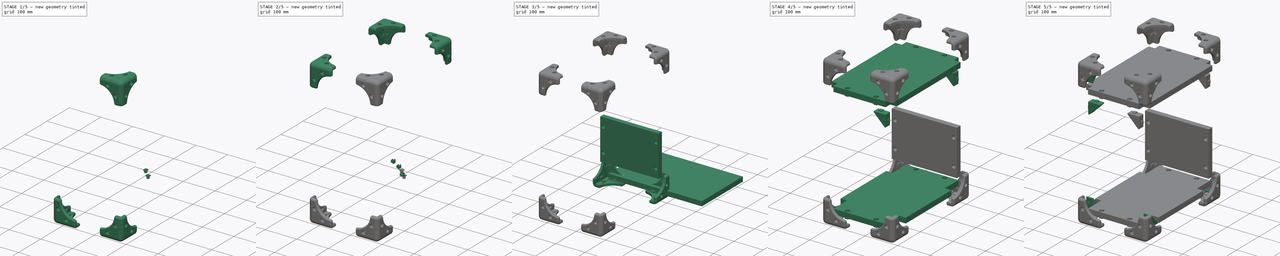
[diagram: build sequence overview — one tinted view per stage of 5, left to right]
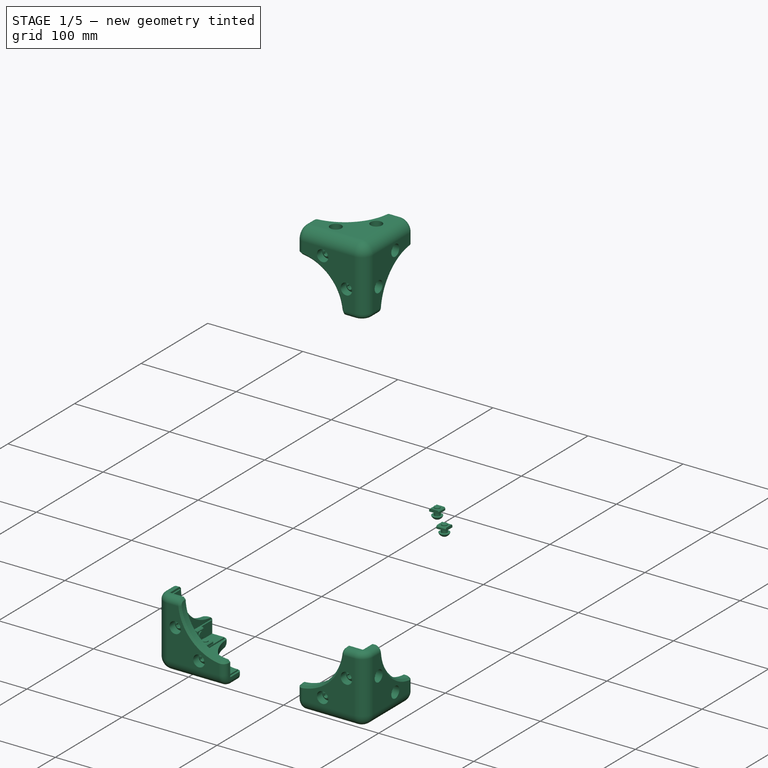
[diagram: stage 1 of 5 — iso view after this stage's code; geometry added in this stage tinted green]
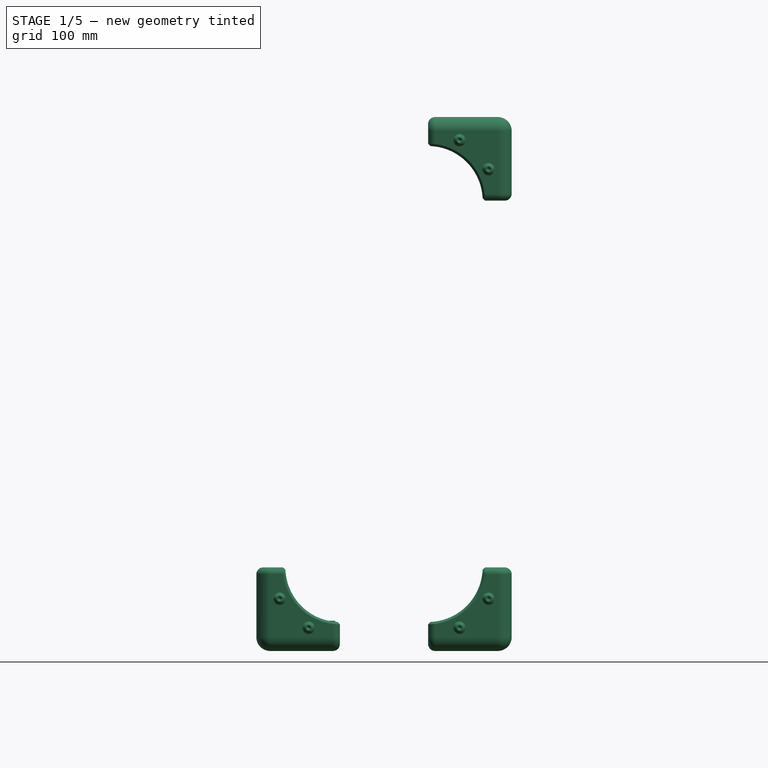
[diagram: stage 1 of 5 — front view after this stage's code; geometry added in this stage tinted green]
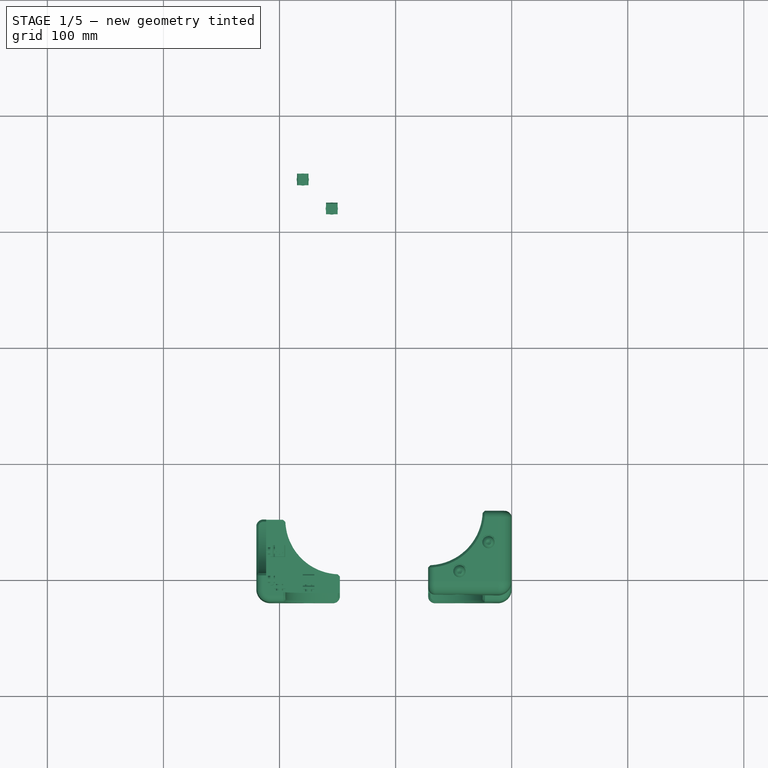
[diagram: stage 1 of 5 — top view after this stage's code; geometry added in this stage tinted green]
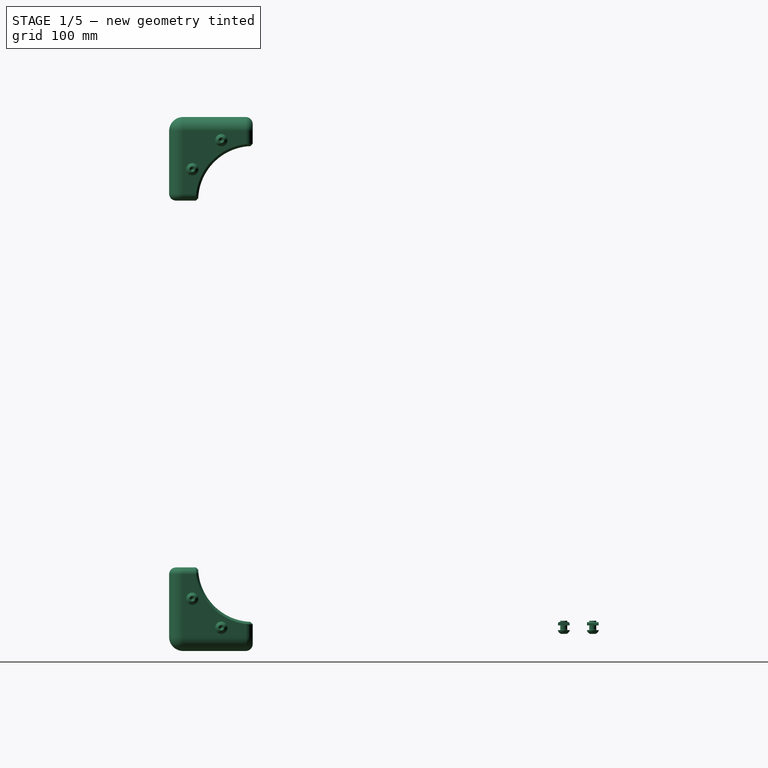
[diagram: stage 1 of 5 — right view after this stage's code; geometry added in this stage tinted green]
FCSTD DOCUMENT  (FreeCAD 0.17R9796 (Git))
Label: UPKframe11
License: All rights reserved
LicenseURL: http://en.wikipedia.org/wiki/All_rights_reserved
objects: Part::Feature×186, Part::Compound×78, Part::FeaturePython×30, App::FeaturePython×12, App::Part×7, Sketcher::SketchObject×7, PartDesign::Pocket×6, PartDesign::Body×3, Part::Box×2, PartDesign::Pad×1
note: 320 computed .brp shape members not serialized (recipe doc carries the construction recipe); baked Part::Feature solids carry a one-line shape summary decoded from their .brp

FEATURE [Part::Feature] Cut032  label="m6x8screw031"
  shape: bbox 10.5 x 10.5 x 11.3 mm, 14 faces (baked)
FEATURE [Part::Feature] Body010060  label="m6nutplate064"
  Placement = pos=(5,-5,-4) rot=(0,1,0;3.14159rad)
  shape: bbox 10 x 10 x 3 mm, 9 faces (baked)
FEATURE [Part::Compound] Compound054  label="nutplate8screw028"
  Links = -> [Cut032,Body010060]
  Placement = pos=(45,20,8) rot=(0.707107,-0.707107,0;3.14159rad)
FEATURE [Part::Feature] Cut033  label="m6x8screw032"
  shape: bbox 10.5 x 10.5 x 11.3 mm, 14 faces (baked)
FEATURE [Part::Feature] Body010061  label="m6nutplate065"
  Placement = pos=(5,-5,-4) rot=(0,1,0;3.14159rad)
  shape: bbox 10 x 10 x 3 mm, 9 faces (baked)
FEATURE [Part::Compound] Compound055  label="nutplate8screw029"
  Links = -> [Cut033,Body010061]
  Placement = pos=(20,45,8) rot=(1,0,0;3.14159rad)
FEATURE [Part::Feature] Chamfer002014  label="shell3dcorner013"
  shape: bbox 72.99 x 72.99 x 72.99 mm, 88 faces (baked)
FEATURE [Part::Feature] Cut034  label="m6x8screw033"
  shape: bbox 10.5 x 10.5 x 11.3 mm, 14 faces (baked)
FEATURE [Part::Feature] Body010062  label="m6nutplate066"
  Placement = pos=(5,-5,-4) rot=(0,1,0;3.14159rad)
  shape: bbox 10 x 10 x 3 mm, 9 faces (baked)
FEATURE [Part::Compound] Compound057  label="nutplate8screw030"
  Links = -> [Cut034,Body010062]
  Placement = pos=(20,8,45) rot=(1,0,0;1.5708rad)
FEATURE [Part::Feature] Cut035  label="m6x8screw034"
  shape: bbox 10.5 x 10.5 x 11.3 mm, 14 faces (baked)
FEATURE [Part::Feature] Body010063  label="m6nutplate067"
  Placement = pos=(5,-5,-4) rot=(0,1,0;3.14159rad)
  shape: bbox 10 x 10 x 3 mm, 9 faces (baked)
FEATURE [Part::Compound] Compound058  label="nutplate8screw031"
  Links = -> [Cut035,Body010063]
  Placement = pos=(45,8,20) rot=(0.57735,-0.57735,0.57735;2.0944rad)
FEATURE [Part::Feature] Cut036  label="m6x8screw035"
  shape: bbox 10.5 x 10.5 x 11.3 mm, 14 faces (baked)
FEATURE [Part::Feature] Body010064  label="m6nutplate068"
  Placement = pos=(5,-5,-4) rot=(0,1,0;3.14159rad)
  shape: bbox 10 x 10 x 3 mm, 9 faces (baked)
FEATURE [Part::Compound] Compound059  label="nutplate8screw032"
  Links = -> [Cut036,Body010064]
  Placement = pos=(8,20,45) rot=(0.57735,-0.57735,-0.57735;2.0944rad)
FEATURE [Part::Feature] Cut037  label="m6x8screw036"
  shape: bbox 10.5 x 10.5 x 11.3 mm, 14 faces (baked)
FEATURE [Part::Feature] Body010065  label="m6nutplate069"
  Placement = pos=(5,-5,-4) rot=(0,1,0;3.14159rad)
  shape: bbox 10 x 10 x 3 mm, 9 faces (baked)
FEATURE [Part::Compound] Compound060  label="nutplate8screw033"
  Links = -> [Cut037,Body010065]
  Placement = pos=(8,45,20) rot=(0,-1,0;1.5708rad)
FEATURE [Part::Feature] Cut038  label="m6x8screw037"
  shape: bbox 10.5 x 10.5 x 11.3 mm, 14 faces (baked)
FEATURE [Part::Feature] Body010066  label="m6nutplate070"
  Placement = pos=(5,-5,-4) rot=(0,1,0;3.14159rad)
  shape: bbox 10 x 10 x 3 mm, 9 faces (baked)
FEATURE [Part::Compound] Compound061  label="nutplate8screw034"
  Links = -> [Cut038,Body010066]
  Placement = pos=(45,20,8) rot=(0.707107,-0.707107,0;3.14159rad)
FEATURE [Part::Feature] Cut039  label="m6x8screw038"
  shape: bbox 10.5 x 10.5 x 11.3 mm, 14 faces (baked)
FEATURE [Part::Feature] Body010067  label="m6nutplate071"
  Placement = pos=(5,-5,-4) rot=(0,1,0;3.14159rad)
  shape: bbox 10 x 10 x 3 mm, 9 faces (baked)
FEATURE [Part::Compound] Compound062  label="nutplate8screw035"
  Links = -> [Cut039,Body010067]
  Placement = pos=(20,45,8) rot=(1,0,0;3.14159rad)
FEATURE [Part::Compound] Compound063  label="shell3dcornerscrewnut005"
  Links = -> [Chamfer002014,Compound062,Compound058,Compound059,Compound057,Compound060,Compound061]
  Placement = pos=(200,-320,450) rot=(0.57735,0.57735,-0.57735;4.18879rad)
FEATURE [Part::Feature] Chamfer002015  label="shell3dcorner014"
  shape: bbox 72.99 x 72.99 x 72.99 mm, 88 faces (baked)
FEATURE [Part::Feature] Cut040  label="m6x8screw039"
  shape: bbox 10.5 x 10.5 x 11.3 mm, 14 faces (baked)
FEATURE [Part::Feature] Body010068  label="m6nutplate072"
  Placement = pos=(5,-5,-4) rot=(0,1,0;3.14159rad)
  shape: bbox 10 x 10 x 3 mm, 9 faces (baked)
FEATURE [Part::Compound] Compound064  label="nutplate8screw036"
  Links = -> [Cut040,Body010068]
  Placement = pos=(20,8,45) rot=(1,0,0;1.5708rad)
FEATURE [Part::Feature] Cut041  label="m6x8screw040"
  shape: bbox 10.5 x 10.5 x 11.3 mm, 14 faces (baked)
FEATURE [Part::Feature] Body010069  label="m6nutplate073"
  Placement = pos=(5,-5,-4) rot=(0,1,0;3.14159rad)
  shape: bbox 10 x 10 x 3 mm, 9 faces (baked)
FEATURE [Part::Compound] Compound065  label="nutplate8screw037"
  Links = -> [Cut041,Body010069]
  Placement = pos=(45,8,20) rot=(0.57735,-0.57735,0.57735;2.0944rad)
FEATURE [Part::Feature] Cut042  label="m6x8screw041"
  shape: bbox 10.5 x 10.5 x 11.3 mm, 14 faces (baked)
FEATURE [Part::Feature] Body010070  label="m6nutplate074"
  Placement = pos=(5,-5,-4) rot=(0,1,0;3.14159rad)
  shape: bbox 10 x 10 x 3 mm, 9 faces (baked)
FEATURE [Part::Compound] Compound066  label="nutplate8screw038"
  Links = -> [Cut042,Body010070]
  Placement = pos=(8,20,45) rot=(0.57735,-0.57735,-0.57735;2.0944rad)
FEATURE [Part::Feature] Cut043  label="m6x8screw042"
  shape: bbox 10.5 x 10.5 x 11.3 mm, 14 faces (baked)
FEATURE [Part::Feature] Body010071  label="m6nutplate075"
  Placement = pos=(5,-5,-4) rot=(0,1,0;3.14159rad)
  shape: bbox 10 x 10 x 3 mm, 9 faces (baked)
FEATURE [Part::Compound] Compound067  label="nutplate8screw039"
  Links = -> [Cut043,Body010071]
  Placement = pos=(8,45,20) rot=(0,-1,0;1.5708rad)
FEATURE [Part::Feature] Cut044  label="m6x8screw043"
  shape: bbox 10.5 x 10.5 x 11.3 mm, 14 faces (baked)
FEATURE [Part::Feature] Body010072  label="m6nutplate076"
  Placement = pos=(5,-5,-4) rot=(0,1,0;3.14159rad)
  shape: bbox 10 x 10 x 3 mm, 9 faces (baked)
FEATURE [Part::Compound] Compound068  label="nutplate8screw040"
  Links = -> [Cut044,Body010072]
  Placement = pos=(45,20,8) rot=(0.707107,-0.707107,0;3.14159rad)
FEATURE [Part::Feature] Cut045  label="m6x8screw044"
  shape: bbox 10.5 x 10.5 x 11.3 mm, 14 faces (baked)
FEATURE [Part::Feature] Body010073  label="m6nutplate077"
  Placement = pos=(5,-5,-4) rot=(0,1,0;3.14159rad)
  shape: bbox 10 x 10 x 3 mm, 9 faces (baked)
FEATURE [Part::Compound] Compound069  label="nutplate8screw041"
  Links = -> [Cut045,Body010073]
  Placement = pos=(20,45,8) rot=(1,0,0;3.14159rad)
FEATURE [Part::Compound] Compound070  label="shell3dcornerscrewnut006"
  Links = -> [Chamfer002015,Compound069,Compound065,Compound066,Compound064,Compound067,Compound068]
  Placement = pos=(200,-320,-10) rot=(0,0,1;1.5708rad)
FEATURE [Part::Feature] Chamfer002016  label="shell3dcorner015"
  shape: bbox 72.99 x 72.99 x 72.99 mm, 88 faces (baked)
FEATURE [Part::Feature] Cut046  label="m6x8screw045"
  shape: bbox 10.5 x 10.5 x 11.3 mm, 14 faces (baked)
FEATURE [Part::Feature] Body010074  label="m6nutplate078"
  Placement = pos=(5,-5,-4) rot=(0,1,0;3.14159rad)
  shape: bbox 10 x 10 x 3 mm, 9 faces (baked)
FEATURE [Part::Compound] Compound071  label="nutplate8screw042"
  Links = -> [Cut046,Body010074]
  Placement = pos=(20,8,45) rot=(1,0,0;1.5708rad)
FEATURE [Part::Feature] Cut047  label="m6x8screw046"
  shape: bbox 10.5 x 10.5 x 11.3 mm, 14 faces (baked)
FEATURE [Part::Feature] Body010075  label="m6nutplate079"
  Placement = pos=(5,-5,-4) rot=(0,1,0;3.14159rad)
  shape: bbox 10 x 10 x 3 mm, 9 faces (baked)
FEATURE [Part::Compound] Compound072  label="nutplate8screw043"
  Links = -> [Cut047,Body010075]
  Placement = pos=(45,8,20) rot=(0.57735,-0.57735,0.57735;2.0944rad)
FEATURE [Part::Feature] Cut048  label="m6x8screw047"
  shape: bbox 10.5 x 10.5 x 11.3 mm, 14 faces (baked)
FEATURE [Part::Feature] Body010076  label="m6nutplate080"
  Placement = pos=(5,-5,-4) rot=(0,1,0;3.14159rad)
  shape: bbox 10 x 10 x 3 mm, 9 faces (baked)
FEATURE [Part::Compound] Compound073  label="nutplate8screw044"
  Links = -> [Cut048,Body010076]
  Placement = pos=(8,20,45) rot=(0.57735,-0.57735,-0.57735;2.0944rad)
FEATURE [Part::Feature] Cut049  label="m6x8screw048"
  shape: bbox 10.5 x 10.5 x 11.3 mm, 14 faces (baked)
FEATURE [Part::Feature] Body010077  label="m6nutplate081"
  Placement = pos=(5,-5,-4) rot=(0,1,0;3.14159rad)
  shape: bbox 10 x 10 x 3 mm, 9 faces (baked)
FEATURE [Part::Compound] Compound074  label="nutplate8screw045"
  Links = -> [Cut049,Body010077]
  Placement = pos=(8,45,20) rot=(0,-1,0;1.5708rad)
FEATURE [Part::Feature] Cut050  label="m6x8screw049"
  shape: bbox 10.5 x 10.5 x 11.3 mm, 14 faces (baked)
FEATURE [Part::Feature] Body010078  label="m6nutplate082"
  Placement = pos=(5,-5,-4) rot=(0,1,0;3.14159rad)
  shape: bbox 10 x 10 x 3 mm, 9 faces (baked)
FEATURE [Part::Compound] Compound075  label="nutplate8screw046"
  Links = -> [Cut050,Body010078]
  Placement = pos=(45,20,8) rot=(0.707107,-0.707107,0;3.14159rad)
FEATURE [Part::Feature] Cut051  label="m6x8screw050"
  shape: bbox 10.5 x 10.5 x 11.3 mm, 14 faces (baked)
FEATURE [Part::Feature] Body010079  label="m6nutplate083"
  Placement = pos=(5,-5,-4) rot=(0,1,0;3.14159rad)
  shape: bbox 10 x 10 x 3 mm, 9 faces (baked)
FEATURE [Part::Compound] Compound076  label="nutplate8screw047"
  Links = -> [Cut051,Body010079]
  Placement = pos=(20,45,8) rot=(1,0,0;3.14159rad)
FEATURE [Part::Compound] Compound077  label="shell3dcornerscrewnut007"
  Links = -> [Chamfer002016,Compound076,Compound072,Compound073,Compound071,Compound074,Compound075]
  Placement = pos=(-20,-320,-10) rot=(0.57735,0.57735,0.57735;2.0944rad)
FEATURE [Part::Feature] Chamfer003001  label="Chamfer004"
  Placement = pos=(129.5,-5,447.5) rot=(0.57735,0.57735,-0.57735;4.18879rad)
  shape: bbox 76.3 x 23.24 x 23.24 mm, 47 faces (baked)
FEATURE [Part::Feature] Chamfer003002  label="Chamfer005"
  Placement = pos=(129.5,-5,447.5) rot=(0.57735,0.57735,-0.57735;4.18879rad)
  shape: bbox 76.3 x 23.24 x 23.24 mm, 47 faces (baked)
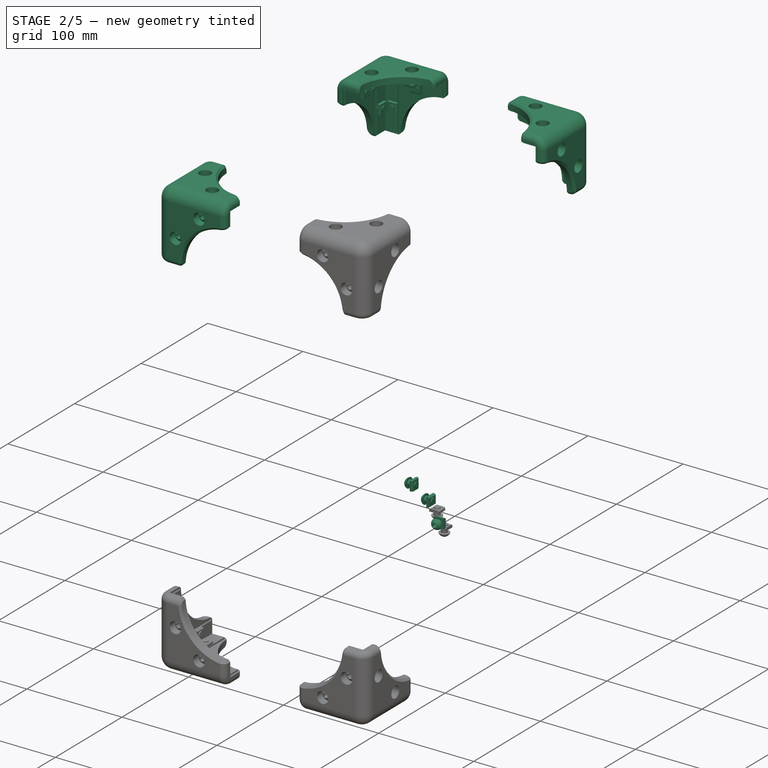
[diagram: stage 2 of 5 — iso view after this stage's code; geometry added in this stage tinted green]
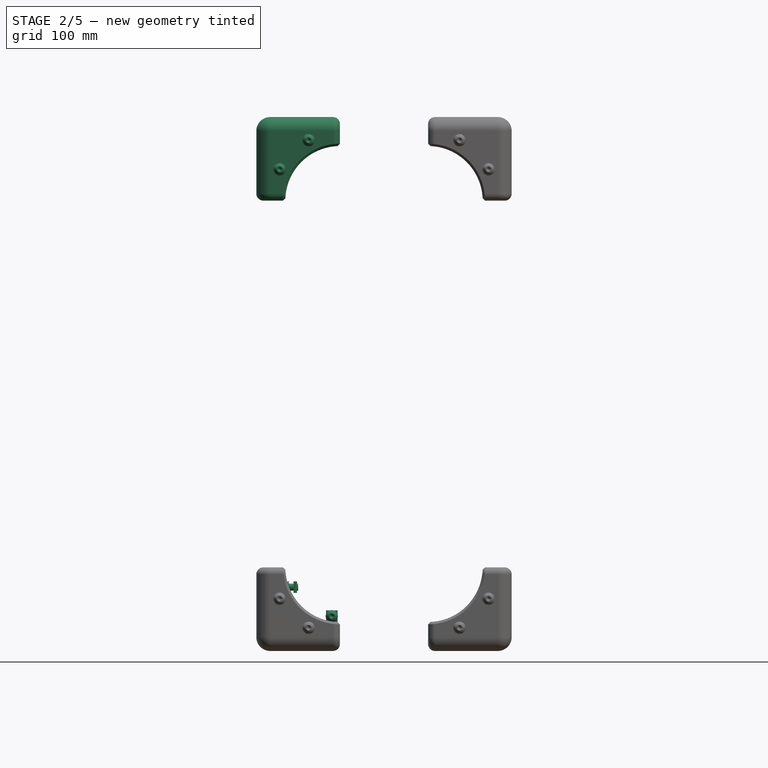
[diagram: stage 2 of 5 — front view after this stage's code; geometry added in this stage tinted green]
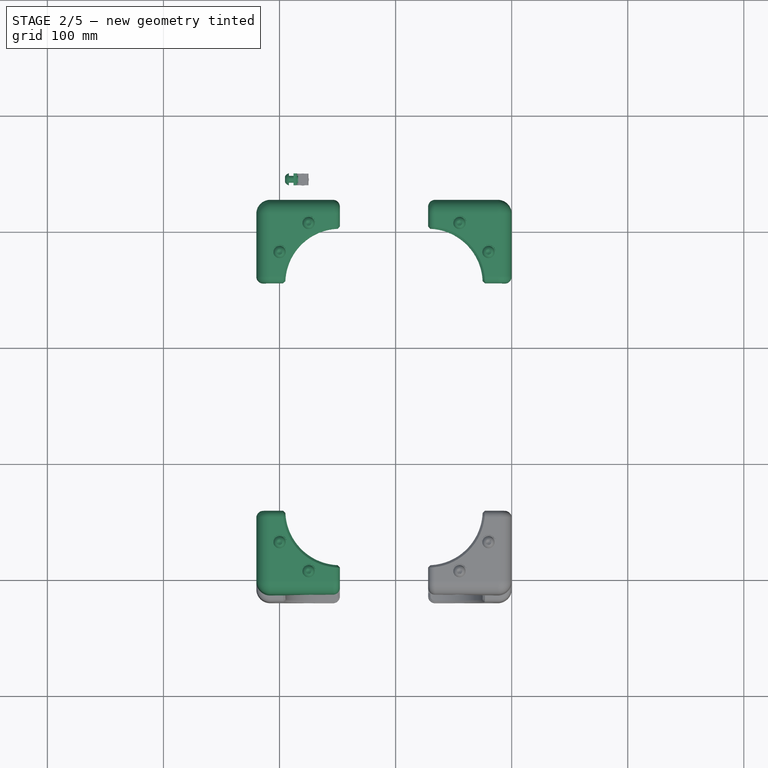
[diagram: stage 2 of 5 — top view after this stage's code; geometry added in this stage tinted green]
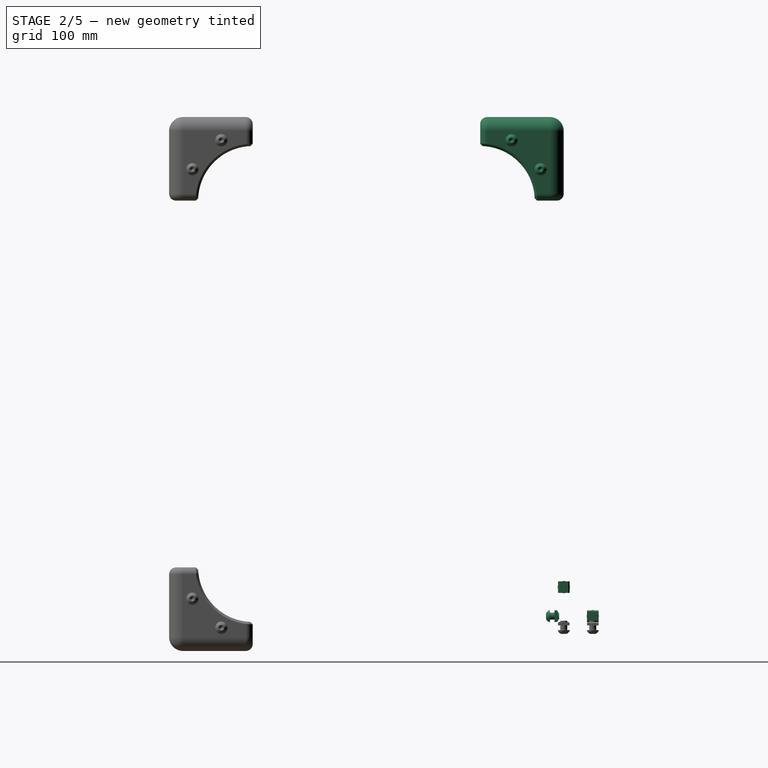
[diagram: stage 2 of 5 — right view after this stage's code; geometry added in this stage tinted green]
FEATURE [Part::Feature] Cut011  label="m6x8screw010"
  shape: bbox 10.5 x 10.5 x 11.3 mm, 14 faces (baked)
FEATURE [Part::Feature] Body010039  label="m6nutplate043"
  Placement = pos=(5,-5,-4) rot=(0,1,0;3.14159rad)
  shape: bbox 10 x 10 x 3 mm, 9 faces (baked)
FEATURE [Part::Compound] Compound030  label="nutplate8screw007"
  Links = -> [Cut011,Body010039]
  Placement = pos=(45,8,20) rot=(0.57735,-0.57735,0.57735;2.0944rad)
FEATURE [Part::Feature] Cut012  label="m6x8screw011"
  shape: bbox 10.5 x 10.5 x 11.3 mm, 14 faces (baked)
FEATURE [Part::Feature] Body010040  label="m6nutplate044"
  Placement = pos=(5,-5,-4) rot=(0,1,0;3.14159rad)
  shape: bbox 10 x 10 x 3 mm, 9 faces (baked)
FEATURE [Part::Compound] Compound031  label="nutplate8screw008"
  Links = -> [Cut012,Body010040]
  Placement = pos=(8,20,45) rot=(0.57735,-0.57735,-0.57735;2.0944rad)
FEATURE [Part::Feature] Cut013  label="m6x8screw012"
  shape: bbox 10.5 x 10.5 x 11.3 mm, 14 faces (baked)
FEATURE [Part::Feature] Body010041  label="m6nutplate045"
  Placement = pos=(5,-5,-4) rot=(0,1,0;3.14159rad)
  shape: bbox 10 x 10 x 3 mm, 9 faces (baked)
FEATURE [Part::Compound] Compound032  label="nutplate8screw009"
  Links = -> [Cut013,Body010041]
  Placement = pos=(8,45,20) rot=(0,-1,0;1.5708rad)
FEATURE [Part::Feature] Cut014  label="m6x8screw013"
  shape: bbox 10.5 x 10.5 x 11.3 mm, 14 faces (baked)
FEATURE [Part::Feature] Body010042  label="m6nutplate046"
  Placement = pos=(5,-5,-4) rot=(0,1,0;3.14159rad)
  shape: bbox 10 x 10 x 3 mm, 9 faces (baked)
FEATURE [Part::Compound] Compound033  label="nutplate8screw010"
  Links = -> [Cut014,Body010042]
  Placement = pos=(45,20,8) rot=(0.707107,-0.707107,0;3.14159rad)
FEATURE [Part::Feature] Cut015  label="m6x8screw014"
  shape: bbox 10.5 x 10.5 x 11.3 mm, 14 faces (baked)
FEATURE [Part::Feature] Body010043  label="m6nutplate047"
  Placement = pos=(5,-5,-4) rot=(0,1,0;3.14159rad)
  shape: bbox 10 x 10 x 3 mm, 9 faces (baked)
FEATURE [Part::Compound] Compound034  label="nutplate8screw011"
  Links = -> [Cut015,Body010043]
  Placement = pos=(20,45,8) rot=(1,0,0;3.14159rad)
FEATURE [Part::Feature] Chamfer002011  label="shell3dcorner010"
  shape: bbox 72.99 x 72.99 x 72.99 mm, 88 faces (baked)
FEATURE [Part::Feature] Cut016  label="m6x8screw015"
  shape: bbox 10.5 x 10.5 x 11.3 mm, 14 faces (baked)
FEATURE [Part::Feature] Body010044  label="m6nutplate048"
  Placement = pos=(5,-5,-4) rot=(0,1,0;3.14159rad)
  shape: bbox 10 x 10 x 3 mm, 9 faces (baked)
FEATURE [Part::Compound] Compound036  label="nutplate8screw012"
  Links = -> [Cut016,Body010044]
  Placement = pos=(20,8,45) rot=(1,0,0;1.5708rad)
FEATURE [Part::Feature] Cut017  label="m6x8screw016"
  shape: bbox 10.5 x 10.5 x 11.3 mm, 14 faces (baked)
FEATURE [Part::Feature] Body010045  label="m6nutplate049"
  Placement = pos=(5,-5,-4) rot=(0,1,0;3.14159rad)
  shape: bbox 10 x 10 x 3 mm, 9 faces (baked)
FEATURE [Part::Compound] Compound037  label="nutplate8screw013"
  Links = -> [Cut017,Body010045]
  Placement = pos=(45,8,20) rot=(0.57735,-0.57735,0.57735;2.0944rad)
FEATURE [Part::Feature] Cut018  label="m6x8screw017"
  shape: bbox 10.5 x 10.5 x 11.3 mm, 14 faces (baked)
FEATURE [Part::Feature] Body010046  label="m6nutplate050"
  Placement = pos=(5,-5,-4) rot=(0,1,0;3.14159rad)
  shape: bbox 10 x 10 x 3 mm, 9 faces (baked)
FEATURE [Part::Compound] Compound038  label="nutplate8screw014"
  Links = -> [Cut018,Body010046]
  Placement = pos=(8,20,45) rot=(0.57735,-0.57735,-0.57735;2.0944rad)
FEATURE [Part::Feature] Cut019  label="m6x8screw018"
  shape: bbox 10.5 x 10.5 x 11.3 mm, 14 faces (baked)
FEATURE [Part::Feature] Body010047  label="m6nutplate051"
  Placement = pos=(5,-5,-4) rot=(0,1,0;3.14159rad)
  shape: bbox 10 x 10 x 3 mm, 9 faces (baked)
FEATURE [Part::Compound] Compound039  label="nutplate8screw015"
  Links = -> [Cut019,Body010047]
  Placement = pos=(8,45,20) rot=(0,-1,0;1.5708rad)
FEATURE [Part::Feature] Cut020  label="m6x8screw019"
  shape: bbox 10.5 x 10.5 x 11.3 mm, 14 faces (baked)
FEATURE [Part::Feature] Body010048  label="m6nutplate052"
  Placement = pos=(5,-5,-4) rot=(0,1,0;3.14159rad)
  shape: bbox 10 x 10 x 3 mm, 9 faces (baked)
FEATURE [Part::Compound] Compound040  label="nutplate8screw016"
  Links = -> [Cut020,Body010048]
  Placement = pos=(45,20,8) rot=(0.707107,-0.707107,0;3.14159rad)
FEATURE [Part::Feature] Cut021  label="m6x8screw020"
  shape: bbox 10.5 x 10.5 x 11.3 mm, 14 faces (baked)
FEATURE [Part::Feature] Body010049  label="m6nutplate053"
  Placement = pos=(5,-5,-4) rot=(0,1,0;3.14159rad)
  shape: bbox 10 x 10 x 3 mm, 9 faces (baked)
FEATURE [Part::Compound] Compound041  label="nutplate8screw017"
  Links = -> [Cut021,Body010049]
  Placement = pos=(20,45,8) rot=(1,0,0;3.14159rad)
FEATURE [Part::Compound] Compound042  label="shell3dcornerscrewnut002"
  Links = -> [Chamfer002011,Compound041,Compound037,Compound038,Compound036,Compound039,Compound040]
  Placement = pos=(200,20,450) rot=(0.707107,-0.707107,0;3.14159rad)
FEATURE [Part::Feature] Chamfer002012  label="shell3dcorner011"
  shape: bbox 72.99 x 72.99 x 72.99 mm, 88 faces (baked)
FEATURE [Part::Feature] Cut022  label="m6x8screw021"
  shape: bbox 10.5 x 10.5 x 11.3 mm, 14 faces (baked)
FEATURE [Part::Feature] Body010050  label="m6nutplate054"
  Placement = pos=(5,-5,-4) rot=(0,1,0;3.14159rad)
  shape: bbox 10 x 10 x 3 mm, 9 faces (baked)
FEATURE [Part::Compound] Compound043  label="nutplate8screw018"
  Links = -> [Cut022,Body010050]
  Placement = pos=(20,8,45) rot=(1,0,0;1.5708rad)
FEATURE [Part::Feature] Cut023  label="m6x8screw022"
  shape: bbox 10.5 x 10.5 x 11.3 mm, 14 faces (baked)
FEATURE [Part::Feature] Body010051  label="m6nutplate055"
  Placement = pos=(5,-5,-4) rot=(0,1,0;3.14159rad)
  shape: bbox 10 x 10 x 3 mm, 9 faces (baked)
FEATURE [Part::Compound] Compound044  label="nutplate8screw019"
  Links = -> [Cut023,Body010051]
  Placement = pos=(45,8,20) rot=(0.57735,-0.57735,0.57735;2.0944rad)
FEATURE [Part::Feature] Cut024  label="m6x8screw023"
  shape: bbox 10.5 x 10.5 x 11.3 mm, 14 faces (baked)
FEATURE [Part::Feature] Body010052  label="m6nutplate056"
  Placement = pos=(5,-5,-4) rot=(0,1,0;3.14159rad)
  shape: bbox 10 x 10 x 3 mm, 9 faces (baked)
FEATURE [Part::Compound] Compound045  label="nutplate8screw020"
  Links = -> [Cut024,Body010052]
  Placement = pos=(8,20,45) rot=(0.57735,-0.57735,-0.57735;2.0944rad)
FEATURE [Part::Feature] Cut025  label="m6x8screw024"
  shape: bbox 10.5 x 10.5 x 11.3 mm, 14 faces (baked)
FEATURE [Part::Feature] Body010053  label="m6nutplate057"
  Placement = pos=(5,-5,-4) rot=(0,1,0;3.14159rad)
  shape: bbox 10 x 10 x 3 mm, 9 faces (baked)
FEATURE [Part::Compound] Compound046  label="nutplate8screw021"
  Links = -> [Cut025,Body010053]
  Placement = pos=(8,45,20) rot=(0,-1,0;1.5708rad)
FEATURE [Part::Feature] Cut026  label="m6x8screw025"
  shape: bbox 10.5 x 10.5 x 11.3 mm, 14 faces (baked)
FEATURE [Part::Feature] Body010054  label="m6nutplate058"
  Placement = pos=(5,-5,-4) rot=(0,1,0;3.14159rad)
  shape: bbox 10 x 10 x 3 mm, 9 faces (baked)
FEATURE [Part::Compound] Compound047  label="nutplate8screw022"
  Links = -> [Cut026,Body010054]
  Placement = pos=(45,20,8) rot=(0.707107,-0.707107,0;3.14159rad)
FEATURE [Part::Feature] Cut027  label="m6x8screw026"
  shape: bbox 10.5 x 10.5 x 11.3 mm, 14 faces (baked)
FEATURE [Part::Feature] Body010055  label="m6nutplate059"
  Placement = pos=(5,-5,-4) rot=(0,1,0;3.14159rad)
  shape: bbox 10 x 10 x 3 mm, 9 faces (baked)
FEATURE [Part::Compound] Compound048  label="nutplate8screw023"
  Links = -> [Cut027,Body010055]
  Placement = pos=(20,45,8) rot=(1,0,0;3.14159rad)
FEATURE [Part::Compound] Compound049  label="shell3dcornerscrewnut003"
  Links = -> [Chamfer002012,Compound048,Compound044,Compound045,Compound043,Compound046,Compound047]
  Placement = pos=(-20,20,450) rot=(0.57735,-0.57735,0.57735;4.18879rad)
FEATURE [Part::Feature] Chamfer002013  label="shell3dcorner012"
  shape: bbox 72.99 x 72.99 x 72.99 mm, 88 faces (baked)
FEATURE [Part::Feature] Cut028  label="m6x8screw027"
  shape: bbox 10.5 x 10.5 x 11.3 mm, 14 faces (baked)
FEATURE [Part::Feature] Body010056  label="m6nutplate060"
  Placement = pos=(5,-5,-4) rot=(0,1,0;3.14159rad)
  shape: bbox 10 x 10 x 3 mm, 9 faces (baked)
FEATURE [Part::Compound] Compound050  label="nutplate8screw024"
  Links = -> [Cut028,Body010056]
  Placement = pos=(20,8,45) rot=(1,0,0;1.5708rad)
FEATURE [Part::Feature] Cut029  label="m6x8screw028"
  shape: bbox 10.5 x 10.5 x 11.3 mm, 14 faces (baked)
FEATURE [Part::Feature] Body010057  label="m6nutplate061"
  Placement = pos=(5,-5,-4) rot=(0,1,0;3.14159rad)
  shape: bbox 10 x 10 x 3 mm, 9 faces (baked)
FEATURE [Part::Compound] Compound051  label="nutplate8screw025"
  Links = -> [Cut029,Body010057]
  Placement = pos=(45,8,20) rot=(0.57735,-0.57735,0.57735;2.0944rad)
FEATURE [Part::Feature] Cut030  label="m6x8screw029"
  shape: bbox 10.5 x 10.5 x 11.3 mm, 14 faces (baked)
FEATURE [Part::Feature] Body010058  label="m6nutplate062"
  Placement = pos=(5,-5,-4) rot=(0,1,0;3.14159rad)
  shape: bbox 10 x 10 x 3 mm, 9 faces (baked)
FEATURE [Part::Compound] Compound052  label="nutplate8screw026"
  Links = -> [Cut030,Body010058]
  Placement = pos=(8,20,45) rot=(0.57735,-0.57735,-0.57735;2.0944rad)
FEATURE [Part::Feature] Cut031  label="m6x8screw030"
  shape: bbox 10.5 x 10.5 x 11.3 mm, 14 faces (baked)
FEATURE [Part::Feature] Body010059  label="m6nutplate063"
  Placement = pos=(5,-5,-4) rot=(0,1,0;3.14159rad)
  shape: bbox 10 x 10 x 3 mm, 9 faces (baked)
FEATURE [Part::Compound] Compound053  label="nutplate8screw027"
  Links = -> [Cut031,Body010059]
  Placement = pos=(8,45,20) rot=(0,-1,0;1.5708rad)
FEATURE [Part::Compound] Compound056  label="shell3dcornerscrewnut004"
  Links = -> [Chamfer002013,Compound055,Compound051,Compound052,Compound050,Compound053,Compound054]
  Placement = pos=(-20,-320,450) rot=(-1,0,0;1.5708rad)
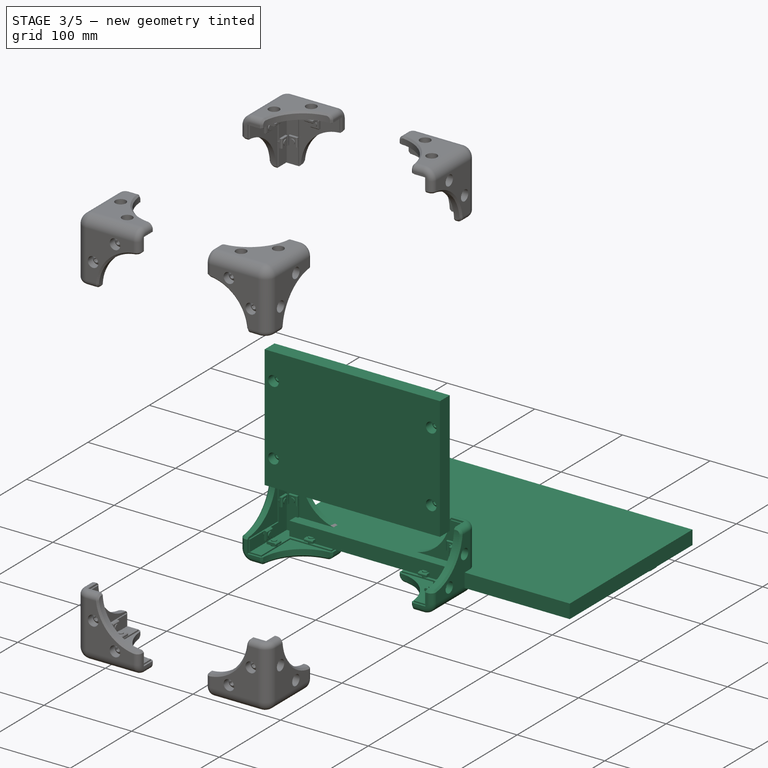
[diagram: stage 3 of 5 — iso view after this stage's code; geometry added in this stage tinted green]
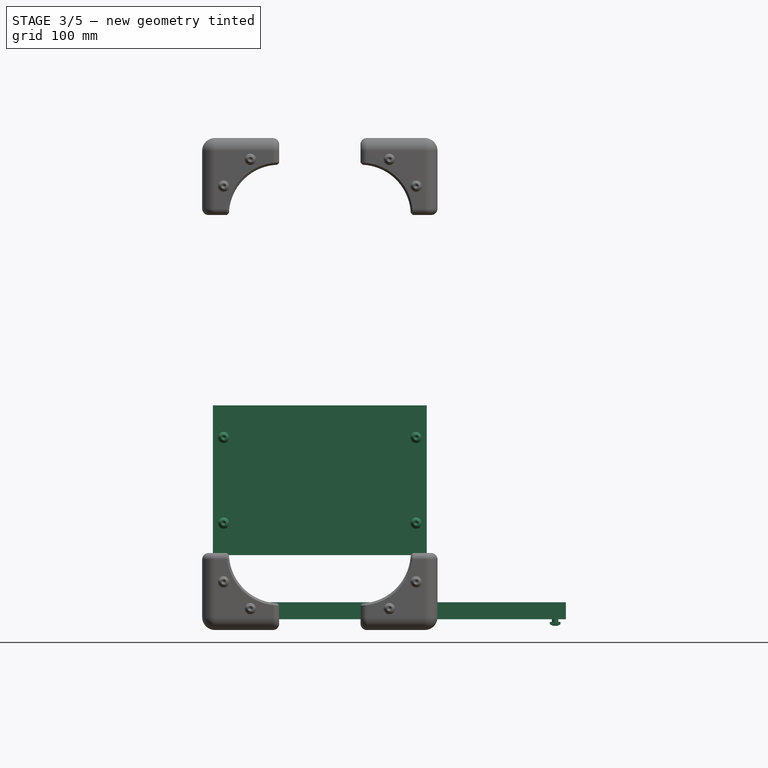
[diagram: stage 3 of 5 — front view after this stage's code; geometry added in this stage tinted green]
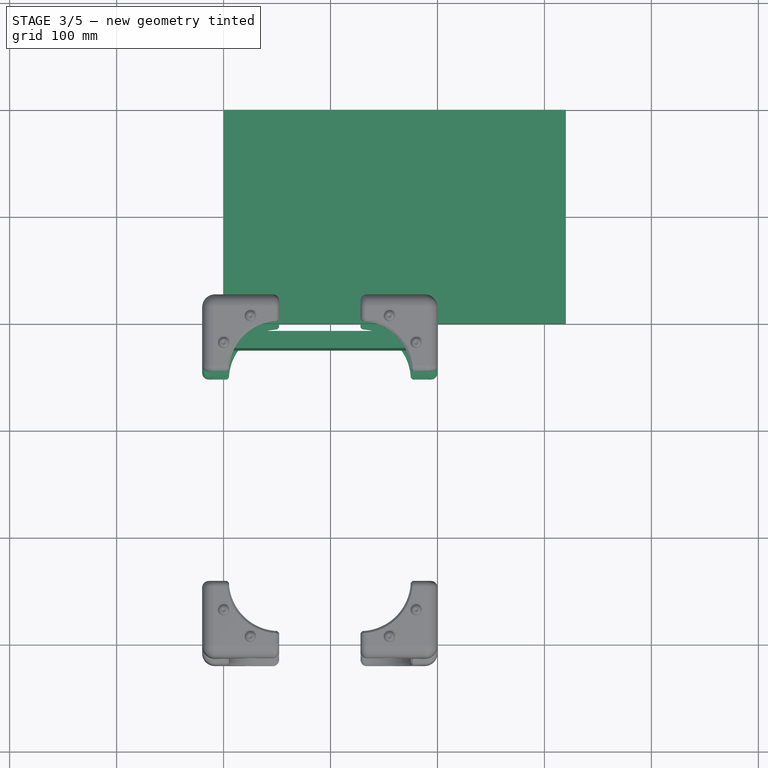
[diagram: stage 3 of 5 — top view after this stage's code; geometry added in this stage tinted green]
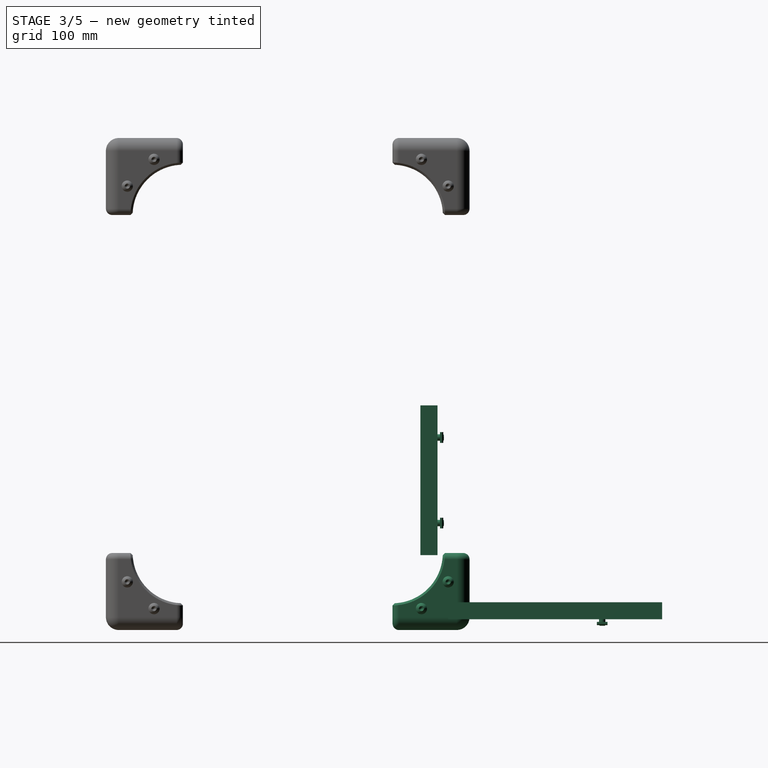
[diagram: stage 3 of 5 — right view after this stage's code; geometry added in this stage tinted green]
FEATURE [Part::Box] Box001  label="Würfel001"
  AttacherType = Attacher::AttachEngine3D
  Height = 16
  Length = 320
  Width = 200
FEATURE [PartDesign::Body] Body010018
  BaseFeature = -> Box001
  Group = -> [Sketch002,Pocket003017,Sketch003,Pocket003018,Sketch004,Pocket002]
  Origin = -> BodyOrigin001
  Tip = -> Pocket002
FEATURE [Part::FeaturePython] Screw018020  label="M6x12-Screw031"  # Fasteners workbench fastener (typed FeaturePython)
  diameter = 4
  invert = false
  length = 1
  matchOuter = false
  offset = 0
  thread = false
  type = 20
FEATURE [Part::Feature] Body010022  label="m6nutplate031"
  Placement = pos=(5,-5,-8.39) rot=(0,1,0;3.14159rad)
  shape: bbox 10 x 10 x 3 mm, 9 faces (baked)
FEATURE [App::FeaturePython] circularEdgeConstraint008  # a2plus constraint (typed FeaturePython)
  Object1 = Screw
  Object2 = Body001
  SubElement1 = Edge7
  SubElement2 = Edge20
  Type = circularEdge
  directionConstraint = 1
  lockRotation = false
  offset = 0
FEATURE [Part::Compound] Compound015  label="nutplate12screw007"
  Links = -> [Screw018020,circularEdgeConstraint008,Body010022]
  Placement = pos=(310,144,6) rot=(0,0,1;0rad)
FEATURE [Part::Feature] Body010023  label="cam72calb3"
  Placement = pos=(20,-162,40) rot=(0,0,1;0rad)
  shape: bbox 31 x 135.1 x 222.5 mm, 16 faces (baked)
FEATURE [Part::Feature] Body010024  label="cam72calb004"
  Placement = pos=(52,-162,40) rot=(0,0,1;0rad)
  shape: bbox 31 x 135.1 x 222.5 mm, 16 faces (baked)
FEATURE [Part::Feature] Body010025  label="cam72calb005"
  Placement = pos=(84,-162,40) rot=(0,0,1;0rad)
  shape: bbox 31 x 135.1 x 222.5 mm, 16 faces (baked)
FEATURE [Part::Feature] Body010026  label="cam72calb006"
  Placement = pos=(116,-162,40) rot=(0,0,1;0rad)
  shape: bbox 31 x 135.1 x 222.5 mm, 16 faces (baked)
FEATURE [Sketcher::SketchObject] Sketch005
  MapMode = 5
  Support = -> [XY_Plane009]
  sketch-geometry (8):
    g0: LineSegment StartX=0 StartY=140 StartZ=0 EndX=200 EndY=140 EndZ=0
    g1: LineSegment StartX=200 StartY=140 StartZ=0 EndX=200 EndY=0 EndZ=0
    g2: LineSegment StartX=200 StartY=0 StartZ=0 EndX=0 EndY=0 EndZ=0
    g3: LineSegment StartX=0 StartY=0 StartZ=0 EndX=0 EndY=140 EndZ=0
    g4: Circle CenterX=10 CenterY=110 CenterZ=0 NormalX=0 NormalY=0 NormalZ=1 Radius=3
    g5: Circle CenterX=10 CenterY=30 CenterZ=0 NormalX=0 NormalY=0 NormalZ=1 Radius=3
    g6: Circle CenterX=190 CenterY=110 CenterZ=0 NormalX=0 NormalY=0 NormalZ=1 Radius=3
    g7: Circle CenterX=190 CenterY=30 CenterZ=0 NormalX=0 NormalY=0 NormalZ=1 Radius=3
  constraints (23):
    c: Coincident(g0,g1)
    c: Coincident(g1,g2)
    c: Coincident(g2,g3)
    c: Coincident(g3,g0)
    c: Horizontal(g0)
    c: Horizontal(g2)
    c: Vertical(g1)
    c: Vertical(g3)
    c: Coincident(g2,g-1)
    c: DistanceY(g3,g3) = 140
    c: DistanceX(g2,g2) = 200
    c: DistanceX(g6,g0) = 10
    c: DistanceX(g7,g1) = 10
    c: DistanceX(g-1,g5) = 10
    c: DistanceX(g0,g4) = 10
    c: DistanceY(g-1,g5) = 30
    c: DistanceY(g1,g7) = 30
    c: DistanceY(g6,g0) = 30
    c: DistanceY(g4,g0) = 30
    c: Radius(g4) = 3
    c: Radius(g6) = 3
    c: Radius(g7) = 3
    c: Radius(g5) = 3
FEATURE [PartDesign::Pad] Pad
  Length = 16
  Length2 = 100
  Profile = -> Sketch005
  Type = 0
FEATURE [Sketcher::SketchObject] Sketch006
  MapMode = 5
  Placement = pos=(0,0,16) rot=(0,0,1;0rad)
  Support = -> [Pad]
  sketch-geometry (4):
    g0: Circle CenterX=10 CenterY=110 CenterZ=0 NormalX=0 NormalY=0 NormalZ=1 Radius=6
    g1: Circle CenterX=190 CenterY=110 CenterZ=0 NormalX=0 NormalY=0 NormalZ=1 Radius=6
    g2: Circle CenterX=190 CenterY=30 CenterZ=0 NormalX=0 NormalY=0 NormalZ=1 Radius=6
    g3: Circle CenterX=10 CenterY=30 CenterZ=0 NormalX=0 NormalY=0 NormalZ=1 Radius=6
  constraints (12):
    c: DistanceX(g-1,g0) = 10
    c: DistanceX(g-1,g1) = 190
    c: DistanceX(g-1,g2) = 190
    c: DistanceX(g-1,g3) = 10
    c: DistanceY(g-1,g3) = 30
    c: DistanceY(g-1,g0) = 110
    c: DistanceY(g-1,g1) = 110
    c: DistanceY(g-1,g2) = 30
    c: Radius(g0) = 6
    c: Radius(g1) = 6
    c: Radius(g2) = 6
    c: Radius(g3) = 6
FEATURE [PartDesign::Pocket] Pocket003019
  BaseFeature = -> Pad
  Length = 10
  Profile = -> Sketch006
  Type = 0
FEATURE [PartDesign::Body] Body010027
  Group = -> [Sketch005,Pad,Sketch006,Pocket003019]
  Origin = -> BodyOrigin002
  Tip = -> Pocket003019
FEATURE [Part::FeaturePython] Screw018021  label="M6x12-Screw032"  # Fasteners workbench fastener (typed FeaturePython)
  diameter = 4
  invert = false
  length = 1
  matchOuter = false
  offset = 0
  thread = false
  type = 20
FEATURE [Part::Feature] Body010028  label="m6nutplate032"
  Placement = pos=(5,-5,-8.39) rot=(0,1,0;3.14159rad)
  shape: bbox 10 x 10 x 3 mm, 9 faces (baked)
FEATURE [App::FeaturePython] circularEdgeConstraint009  # a2plus constraint (typed FeaturePython)
  Object1 = Screw
  Object2 = Body001
  SubElement1 = Edge7
  SubElement2 = Edge20
  Type = circularEdge
  directionConstraint = 1
  lockRotation = false
  offset = 0
FEATURE [Part::Compound] Compound017  label="nutplate12screw008"
  Links = -> [Screw018021,circularEdgeConstraint009,Body010028]
  Placement = pos=(10,30,6) rot=(0,0,1;0rad)
FEATURE [Part::FeaturePython] Screw018022  label="M6x12-Screw033"  # Fasteners workbench fastener (typed FeaturePython)
  diameter = 4
  invert = false
  length = 1
  matchOuter = false
  offset = 0
  thread = false
  type = 20
FEATURE [Part::Feature] Body010029  label="m6nutplate033"
  Placement = pos=(5,-5,-8.39) rot=(0,1,0;3.14159rad)
  shape: bbox 10 x 10 x 3 mm, 9 faces (baked)
FEATURE [App::FeaturePython] circularEdgeConstraint010  # a2plus constraint (typed FeaturePython)
  Object1 = Screw
  Object2 = Body001
  SubElement1 = Edge7
  SubElement2 = Edge20
  Type = circularEdge
  directionConstraint = 1
  lockRotation = false
  offset = 0
FEATURE [Part::Compound] Compound018  label="nutplate12screw009"
  Links = -> [Screw018022,circularEdgeConstraint010,Body010029]
  Placement = pos=(10,110,6) rot=(0,0,1;0rad)
FEATURE [Part::FeaturePython] Screw018023  label="M6x12-Screw034"  # Fasteners workbench fastener (typed FeaturePython)
  diameter = 4
  invert = false
  length = 1
  matchOuter = false
  offset = 0
  thread = false
  type = 20
FEATURE [Part::Feature] Body010030  label="m6nutplate034"
  Placement = pos=(5,-5,-8.39) rot=(0,1,0;3.14159rad)
  shape: bbox 10 x 10 x 3 mm, 9 faces (baked)
FEATURE [App::FeaturePython] circularEdgeConstraint011  # a2plus constraint (typed FeaturePython)
  Object1 = Screw
  Object2 = Body001
  SubElement1 = Edge7
  SubElement2 = Edge20
  Type = circularEdge
  directionConstraint = 1
  lockRotation = false
  offset = 0
FEATURE [Part::Compound] Compound019  label="nutplate12screw010"
  Links = -> [Screw018023,circularEdgeConstraint011,Body010030]
  Placement = pos=(190,110,6) rot=(0,0,1;0rad)
FEATURE [Part::FeaturePython] Screw018024  label="M6x12-Screw035"  # Fasteners workbench fastener (typed FeaturePython)
  diameter = 4
  invert = false
  length = 1
  matchOuter = false
  offset = 0
  thread = false
  type = 20
FEATURE [Part::Feature] Body010031  label="m6nutplate035"
  Placement = pos=(5,-5,-8.39) rot=(0,1,0;3.14159rad)
  shape: bbox 10 x 10 x 3 mm, 9 faces (baked)
FEATURE [App::FeaturePython] circularEdgeConstraint012  # a2plus constraint (typed FeaturePython)
  Object1 = Screw
  Object2 = Body001
  SubElement1 = Edge7
  SubElement2 = Edge20
  Type = circularEdge
  directionConstraint = 1
  lockRotation = false
  offset = 0
FEATURE [Part::Compound] Compound020  label="nutplate12screw011"
  Links = -> [Screw018024,circularEdgeConstraint012,Body010031]
  Placement = pos=(190,30,6) rot=(0,0,1;0rad)
FEATURE [Part::Compound] Compound021  label="front_plate"
  Links = -> [Body010027,Compound020,Compound019,Compound017,Compound018]
  Placement = pos=(-10,-10,60) rot=(1,0,0;1.5708rad)
FEATURE [Part::Feature] Chamfer002009  label="shell3dcorner008"
  shape: bbox 72.99 x 72.99 x 72.99 mm, 88 faces (baked)
FEATURE [Part::Feature] Cut004  label="m6x8screw003"
  shape: bbox 10.5 x 10.5 x 11.3 mm, 14 faces (baked)
FEATURE [Part::Feature] Body010032  label="m6nutplate036"
  Placement = pos=(5,-5,-4) rot=(0,1,0;3.14159rad)
  shape: bbox 10 x 10 x 3 mm, 9 faces (baked)
FEATURE [Part::Compound] Compound022  label="nutplate8screw"
  Links = -> [Cut004,Body010032]
  Placement = pos=(20,8,45) rot=(1,0,0;1.5708rad)
FEATURE [Part::Feature] Cut005  label="m6x8screw004"
  shape: bbox 10.5 x 10.5 x 11.3 mm, 14 faces (baked)
FEATURE [Part::Feature] Body010033  label="m6nutplate037"
  Placement = pos=(5,-5,-4) rot=(0,1,0;3.14159rad)
  shape: bbox 10 x 10 x 3 mm, 9 faces (baked)
FEATURE [Part::Compound] Compound023  label="nutplate8screw001"
  Links = -> [Cut005,Body010033]
  Placement = pos=(45,8,20) rot=(0.57735,-0.57735,0.57735;2.0944rad)
FEATURE [Part::Feature] Cut006  label="m6x8screw005"
  shape: bbox 10.5 x 10.5 x 11.3 mm, 14 faces (baked)
FEATURE [Part::Feature] Body010034  label="m6nutplate038"
  Placement = pos=(5,-5,-4) rot=(0,1,0;3.14159rad)
  shape: bbox 10 x 10 x 3 mm, 9 faces (baked)
FEATURE [Part::Compound] Compound024  label="nutplate8screw002"
  Links = -> [Cut006,Body010034]
  Placement = pos=(8,20,45) rot=(0.57735,-0.57735,-0.57735;2.0944rad)
FEATURE [Part::Feature] Cut007  label="m6x8screw006"
  shape: bbox 10.5 x 10.5 x 11.3 mm, 14 faces (baked)
FEATURE [Part::Feature] Body010035  label="m6nutplate039"
  Placement = pos=(5,-5,-4) rot=(0,1,0;3.14159rad)
  shape: bbox 10 x 10 x 3 mm, 9 faces (baked)
FEATURE [Part::Compound] Compound025  label="nutplate8screw003"
  Links = -> [Cut007,Body010035]
  Placement = pos=(8,45,20) rot=(0,-1,0;1.5708rad)
FEATURE [Part::Feature] Cut008  label="m6x8screw007"
  shape: bbox 10.5 x 10.5 x 11.3 mm, 14 faces (baked)
FEATURE [Part::Feature] Body010036  label="m6nutplate040"
  Placement = pos=(5,-5,-4) rot=(0,1,0;3.14159rad)
  shape: bbox 10 x 10 x 3 mm, 9 faces (baked)
FEATURE [Part::Compound] Compound026  label="nutplate8screw004"
  Links = -> [Cut008,Body010036]
  Placement = pos=(45,20,8) rot=(0.707107,-0.707107,0;3.14159rad)
FEATURE [Part::Feature] Cut009  label="m6x8screw008"
  shape: bbox 10.5 x 10.5 x 11.3 mm, 14 faces (baked)
FEATURE [Part::Feature] Body010037  label="m6nutplate041"
  Placement = pos=(5,-5,-4) rot=(0,1,0;3.14159rad)
  shape: bbox 10 x 10 x 3 mm, 9 faces (baked)
FEATURE [Part::Compound] Compound027  label="nutplate8screw005"
  Links = -> [Cut009,Body010037]
  Placement = pos=(20,45,8) rot=(1,0,0;3.14159rad)
FEATURE [Part::Compound] Compound028  label="shell3dcornerscrewnut"
  Links = -> [Chamfer002009,Compound027,Compound023,Compound024,Compound022,Compound025,Compound026]
  Placement = pos=(-20,20,-10) rot=(0,0,-1;1.5708rad)
FEATURE [Part::Feature] Chamfer002010  label="shell3dcorner009"
  shape: bbox 72.99 x 72.99 x 72.99 mm, 88 faces (baked)
FEATURE [Part::Feature] Cut010  label="m6x8screw009"
  shape: bbox 10.5 x 10.5 x 11.3 mm, 14 faces (baked)
FEATURE [Part::Feature] Body010038  label="m6nutplate042"
  Placement = pos=(5,-5,-4) rot=(0,1,0;3.14159rad)
  shape: bbox 10 x 10 x 3 mm, 9 faces (baked)
FEATURE [Part::Compound] Compound029  label="nutplate8screw006"
  Links = -> [Cut010,Body010038]
  Placement = pos=(20,8,45) rot=(1,0,0;1.5708rad)
FEATURE [Part::Compound] Compound035  label="shell3dcornerscrewnut001"
  Links = -> [Chamfer002010,Compound034,Compound030,Compound031,Compound029,Compound032,Compound033]
  Placement = pos=(200,20,-10) rot=(0.57735,-0.57735,-0.57735;2.0944rad)
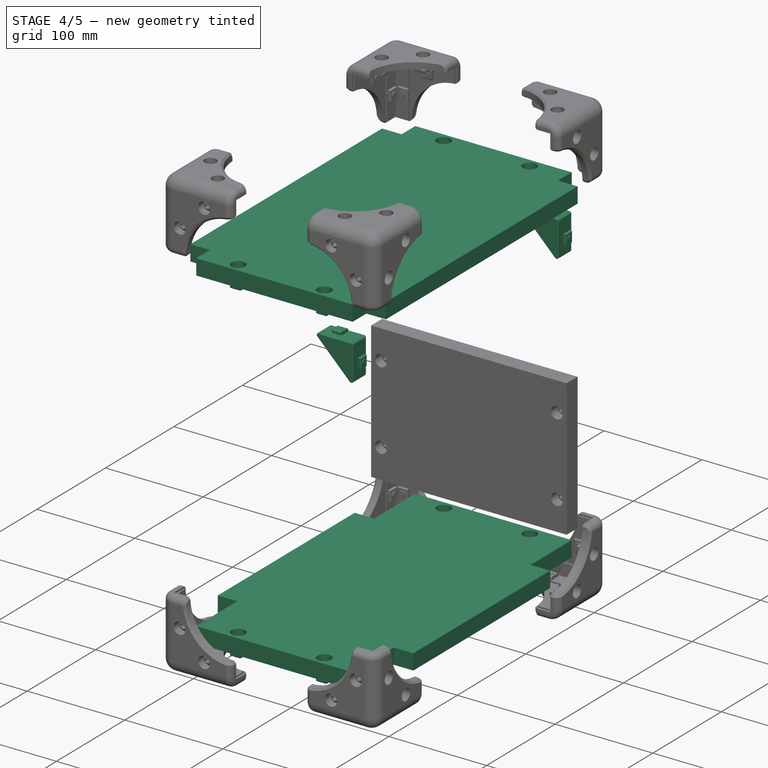
[diagram: stage 4 of 5 — iso view after this stage's code; geometry added in this stage tinted green]
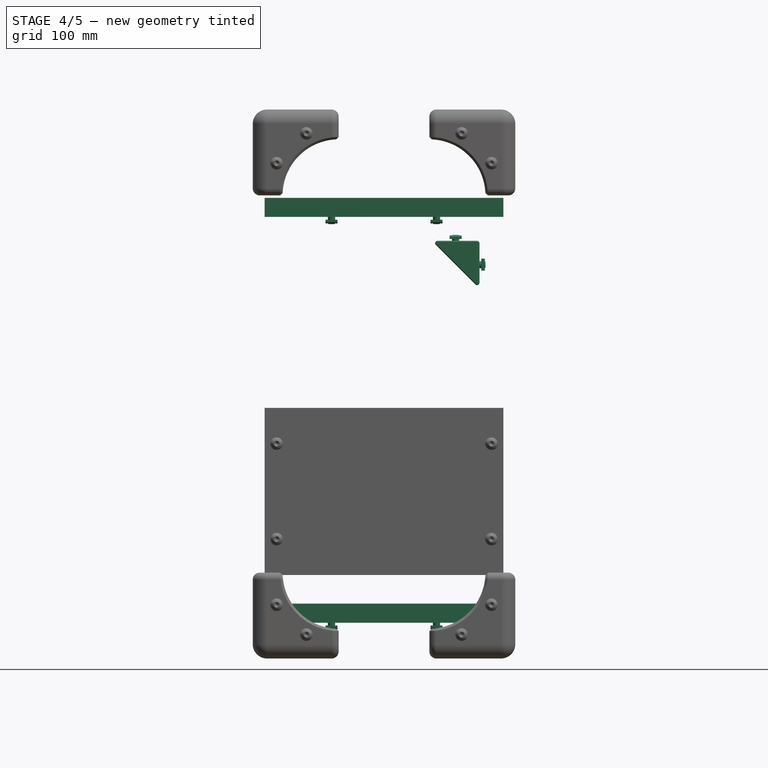
[diagram: stage 4 of 5 — front view after this stage's code; geometry added in this stage tinted green]
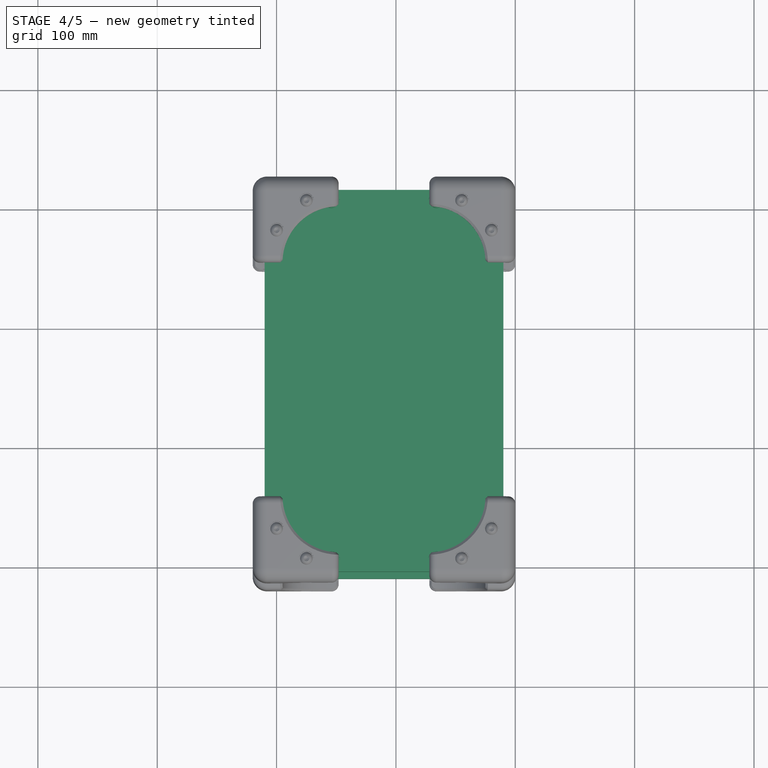
[diagram: stage 4 of 5 — top view after this stage's code; geometry added in this stage tinted green]
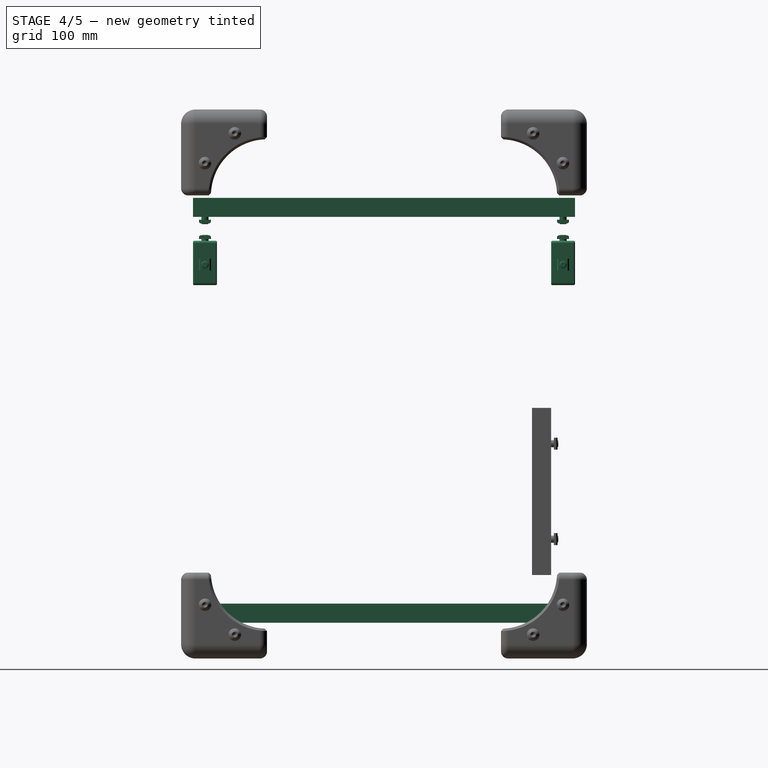
[diagram: stage 4 of 5 — right view after this stage's code; geometry added in this stage tinted green]
FEATURE [Part::Feature] Body010010  label="m6nutplate020"
  Placement = pos=(-1.5,15,5) rot=(0,-1,0;1.5708rad)
  shape: bbox 3 x 10 x 10 mm, 9 faces (baked)
FEATURE [Part::Feature] Body010011  label="m6nutplate021"
  Placement = pos=(15,41.5,5) rot=(0.57735,0.57735,0.57735;4.18879rad)
  shape: bbox 10 x 3 x 10 mm, 9 faces (baked)
FEATURE [Part::Feature] Screw018010  label="M6x12-Screw020"
  Placement = pos=(20,33,10) rot=(1,0,0;1.5708rad)
  shape: bbox 10.5 x 15.3 x 10.5 mm, 15 faces (baked)
FEATURE [Part::Feature] Screw018011  label="M6x12-Screw021"
  Placement = pos=(7,20,10) rot=(0,1,0;1.5708rad)
  shape: bbox 15.3 x 10.5 x 10.5 mm, 15 faces (baked)
FEATURE [Part::Feature] Fillet004005006  label="Fillet015"
  shape: bbox 37.5 x 37.5 x 20 mm, 26 faces (baked)
FEATURE [Part::Compound] Compound005
  Links = -> [Body010010,Fillet004005006,Screw018011,Body010011,Screw018010]
  Placement = pos=(130,-290,340) rot=(0.57735,0.57735,-0.57735;2.0944rad)
FEATURE [Part::Feature] Body010012  label="m6nutplate022"
  Placement = pos=(-1.5,15,5) rot=(0,-1,0;1.5708rad)
  shape: bbox 3 x 10 x 10 mm, 9 faces (baked)
FEATURE [Part::Feature] Body010013  label="m6nutplate023"
  Placement = pos=(15,41.5,5) rot=(0.57735,0.57735,0.57735;4.18879rad)
  shape: bbox 10 x 3 x 10 mm, 9 faces (baked)
FEATURE [Part::Feature] Screw018012  label="M6x12-Screw022"
  Placement = pos=(20,33,10) rot=(1,0,0;1.5708rad)
  shape: bbox 10.5 x 15.3 x 10.5 mm, 15 faces (baked)
FEATURE [Part::Feature] Screw018013  label="M6x12-Screw023"
  Placement = pos=(7,20,10) rot=(0,1,0;1.5708rad)
  shape: bbox 15.3 x 10.5 x 10.5 mm, 15 faces (baked)
FEATURE [Part::Feature] Fillet004005007  label="Fillet016"
  shape: bbox 37.5 x 37.5 x 20 mm, 26 faces (baked)
FEATURE [Part::Compound] Compound006
  Links = -> [Body010012,Fillet004005007,Screw018013,Body010013,Screw018012]
  Placement = pos=(130,10,340) rot=(0.57735,0.57735,-0.57735;2.0944rad)
FEATURE [Part::Box] Box  label="Würfel"
  AttacherType = Attacher::AttachEngine3D
  Height = 16
  Length = 320
  Width = 200
FEATURE [Sketcher::SketchObject] Sketch
  MapMode = 5
  Placement = pos=(0,0,16) rot=(0,0,1;0rad)
  Support = -> [Box]
  sketch-geometry (20):
    g0: LineSegment StartX=0 StartY=20 StartZ=0 EndX=20 EndY=20 EndZ=0
    g1: LineSegment StartX=20 StartY=20 StartZ=0 EndX=20 EndY=0 EndZ=0
    g2: LineSegment StartX=20 StartY=0 StartZ=0 EndX=0 EndY=0 EndZ=0
    g3: LineSegment StartX=0 StartY=0 StartZ=0 EndX=0 EndY=20 EndZ=0
    g4: LineSegment StartX=0 StartY=200 StartZ=0 EndX=20 EndY=200 EndZ=0
    g5: LineSegment StartX=20 StartY=200 StartZ=0 EndX=20 EndY=180 EndZ=0
    g6: LineSegment StartX=20 StartY=180 StartZ=0 EndX=0 EndY=180 EndZ=0
    g7: LineSegment StartX=0 StartY=180 StartZ=0 EndX=0 EndY=200 EndZ=0
    g8: LineSegment StartX=300 StartY=200 StartZ=0 EndX=320 EndY=200 EndZ=0
    g9: LineSegment StartX=320 StartY=200 StartZ=0 EndX=320 EndY=180 EndZ=0
    g10: LineSegment StartX=320 StartY=180 StartZ=0 EndX=300 EndY=180 EndZ=0
    g11: LineSegment StartX=300 StartY=180 StartZ=0 EndX=300 EndY=200 EndZ=0
    g12: LineSegment StartX=300 StartY=20 StartZ=0 EndX=320 EndY=20 EndZ=0
    g13: LineSegment StartX=320 StartY=20 StartZ=0 EndX=320 EndY=0 EndZ=0
    g14: LineSegment StartX=320 StartY=0 StartZ=0 EndX=300 EndY=0 EndZ=0
    g15: LineSegment StartX=300 StartY=0 StartZ=0 EndX=300 EndY=20 EndZ=0
    g16: Circle CenterX=10 CenterY=56 CenterZ=0 NormalX=0 NormalY=0 NormalZ=1 Radius=3
    g17: Circle CenterX=10 CenterY=144 CenterZ=0 NormalX=0 NormalY=0 NormalZ=1 Radius=3
    g18: Circle CenterX=310 CenterY=144 CenterZ=0 NormalX=0 NormalY=0 NormalZ=1 Radius=3
    g19: Circle CenterX=310 CenterY=56 CenterZ=0 NormalX=0 NormalY=0 NormalZ=1 Radius=3
  constraints (59):
    c: Coincident(g0,g1)
    c: Coincident(g1,g2)
    c: Coincident(g2,g3)
    c: Coincident(g3,g0)
    c: Horizontal(g0)
    c: Horizontal(g2)
    c: Vertical(g1)
    c: Vertical(g3)
    c: DistanceX(g0,g0) = 20
    c: DistanceY(g1,g1) = 20
    c: Coincident(g2,g-1)
    c: Coincident(g4,g5)
    c: Coincident(g5,g6)
    c: Coincident(g6,g7)
    c: Coincident(g7,g4)
    c: Horizontal(g4)
    c: Horizontal(g6)
    c: Vertical(g5)
    c: Vertical(g7)
    c: DistanceY(g-1,g4) = 200
    c: DistanceX(g0,g6) = 0
    c: DistanceX(g4,g4) = 20
    c: DistanceY(g5,g5) = 20
    c: Coincident(g8,g9)
    c: Coincident(g9,g10)
    c: Coincident(g10,g11)
    c: Coincident(g11,g8)
    c: Horizontal(g8)
    c: Horizontal(g10)
    c: Vertical(g9)
    c: Vertical(g11)
    c: DistanceX(g8,g8) = 20
    c: DistanceY(g9,g9) = 20
    c: DistanceX(g4,g8) = 320
    c: DistanceY(g8,g4) = 0
    c: Coincident(g12,g13)
    c: Coincident(g13,g14)
    c: Coincident(g14,g15)
    c: Coincident(g15,g12)
    c: Horizontal(g12)
    c: Horizontal(g14)
    c: Vertical(g13)
    c: Vertical(g15)
    c: DistanceX(g12,g12) = 20
    c: DistanceY(g13,g13) = 20
    c: DistanceY(g1,g14) = 0
    c: DistanceX(g-1,g13) = 320
    c: DistanceX(g16,g0) = 10
    c: DistanceY(g1,g16) = 56
    c: Radius(g16) = 3
    c: DistanceY(g17,g5) = 36
    c: DistanceX(g17,g5) = 10
    c: Radius(g17) = 3
    c: DistanceX(g18,g9) = 10
    c: DistanceY(g18,g10) = 36
    c: Radius(g18) = 3
    c: DistanceX(g19,g12) = 10
    c: DistanceY(g12,g19) = 36
    c: Radius(g19) = 3
FEATURE [PartDesign::Pocket] Pocket
  BaseFeature = -> Box
  Length = 16
  Profile = -> Sketch
  Type = 0
FEATURE [Sketcher::SketchObject] Sketch001
  MapMode = 5
  Placement = pos=(0,0,16) rot=(0,0,1;0rad)
  Support = -> [Pocket]
  sketch-geometry (4):
    g0: Circle CenterX=10 CenterY=144 CenterZ=0 NormalX=0 NormalY=0 NormalZ=1 Radius=7
    g1: Circle CenterX=10 CenterY=56 CenterZ=0 NormalX=0 NormalY=0 NormalZ=1 Radius=7
    g2: Circle CenterX=310 CenterY=144 CenterZ=0 NormalX=0 NormalY=0 NormalZ=1 Radius=7
    g3: Circle CenterX=310 CenterY=56 CenterZ=0 NormalX=0 NormalY=0 NormalZ=1 Radius=7
  constraints (6):
    c: DistanceY(g-1,g1) = 56
    c: DistanceX(g-1,g1) = 10
    c: Radius(g1) = 7
    c: Equal(g0,g1)
    c: Equal(g0,g2)
    c: Equal(g2,g3)
FEATURE [PartDesign::Pocket] Pocket001
  BaseFeature = -> Pocket
  Length = 10
  Profile = -> Sketch001
  Type = 0
FEATURE [PartDesign::Body] Body
  BaseFeature = -> Box
  Group = -> [Sketch,Pocket,Sketch001,Pocket001]
  Origin = -> BodyOrigin
  Tip = -> Pocket001
FEATURE [Part::FeaturePython] Screw018014  label="M6x12-Screw024"  # Fasteners workbench fastener (typed FeaturePython)
  diameter = 4
  invert = false
  length = 1
  matchOuter = false
  offset = 0
  thread = false
  type = 20
FEATURE [Part::Feature] Body010014  label="m6nutplate024"
  Placement = pos=(5,-5,-8.39) rot=(0,1,0;3.14159rad)
  shape: bbox 10 x 10 x 3 mm, 9 faces (baked)
FEATURE [App::FeaturePython] circularEdgeConstraint01  # a2plus constraint (typed FeaturePython)
  Object1 = Screw
  Object2 = Body001
  SubElement1 = Edge7
  SubElement2 = Edge20
  Type = circularEdge
  directionConstraint = 1
  lockRotation = false
  offset = 0
FEATURE [Part::Compound] Compound007  label="nutplate12screw"
  Links = -> [Screw018014,circularEdgeConstraint01,Body010014]
  Placement = pos=(10,56,6) rot=(0,0,1;0rad)
FEATURE [Part::FeaturePython] Screw018015  label="M6x12-Screw025"  # Fasteners workbench fastener (typed FeaturePython)
  diameter = 4
  invert = false
  length = 1
  matchOuter = false
  offset = 0
  thread = false
  type = 20
FEATURE [Part::Feature] Body010015  label="m6nutplate025"
  Placement = pos=(5,-5,-8.39) rot=(0,1,0;3.14159rad)
  shape: bbox 10 x 10 x 3 mm, 9 faces (baked)
FEATURE [App::FeaturePython] circularEdgeConstraint002  # a2plus constraint (typed FeaturePython)
  Object1 = Screw
  Object2 = Body001
  SubElement1 = Edge7
  SubElement2 = Edge20
  Type = circularEdge
  directionConstraint = 1
  lockRotation = false
  offset = 0
FEATURE [Part::Compound] Compound008  label="nutplate12screw001"
  Links = -> [Screw018015,circularEdgeConstraint002,Body010015]
  Placement = pos=(10,144,6) rot=(0,0,1;0rad)
FEATURE [Part::FeaturePython] Screw018016  label="M6x12-Screw026"  # Fasteners workbench fastener (typed FeaturePython)
  diameter = 4
  invert = false
  length = 1
  matchOuter = false
  offset = 0
  thread = false
  type = 20
FEATURE [Part::Feature] Body010016  label="m6nutplate026"
  Placement = pos=(5,-5,-8.39) rot=(0,1,0;3.14159rad)
  shape: bbox 10 x 10 x 3 mm, 9 faces (baked)
FEATURE [App::FeaturePython] circularEdgeConstraint003  # a2plus constraint (typed FeaturePython)
  Object1 = Screw
  Object2 = Body001
  SubElement1 = Edge7
  SubElement2 = Edge20
  Type = circularEdge
  directionConstraint = 1
  lockRotation = false
  offset = 0
FEATURE [Part::Compound] Compound009  label="nutplate12screw002"
  Links = -> [Screw018016,circularEdgeConstraint003,Body010016]
  Placement = pos=(310,56,6) rot=(0,0,1;0rad)
FEATURE [Part::FeaturePython] Screw003  label="M6x12-Screw027"  # Fasteners workbench fastener (typed FeaturePython)
  diameter = 4
  invert = false
  length = 1
  matchOuter = false
  offset = 0
  thread = false
  type = 20
FEATURE [Part::Feature] Body010017  label="m6nutplate027"
  Placement = pos=(5,-5,-8.39) rot=(0,1,0;3.14159rad)
  shape: bbox 10 x 10 x 3 mm, 9 faces (baked)
FEATURE [App::FeaturePython] circularEdgeConstraint004  # a2plus constraint (typed FeaturePython)
  Object1 = Screw
  Object2 = Body001
  SubElement1 = Edge7
  SubElement2 = Edge20
  Type = circularEdge
  directionConstraint = 1
  lockRotation = false
  offset = 0
FEATURE [Part::Compound] Compound010  label="nutplate12screw003"
  Links = -> [Screw003,circularEdgeConstraint004,Body010017]
  Placement = pos=(310,144,6) rot=(0,0,1;0rad)
FEATURE [Part::Compound] Compound011  label="top_plate3"
  Links = -> [Compound010,Body,Compound007,Compound008,Compound009]
  Placement = pos=(190,-310,360) rot=(0,0,1;1.5708rad)
FEATURE [Sketcher::SketchObject] Sketch002
  MapMode = 5
  Placement = pos=(0,0,16) rot=(0,0,1;0rad)
  Support = -> [Box001]
  sketch-geometry (20):
    g0: LineSegment StartX=0 StartY=20 StartZ=0 EndX=20 EndY=20 EndZ=0
    g1: LineSegment StartX=20 StartY=20 StartZ=0 EndX=20 EndY=0 EndZ=0
    g2: LineSegment StartX=20 StartY=0 StartZ=0 EndX=0 EndY=0 EndZ=0
    g3: LineSegment StartX=0 StartY=0 StartZ=0 EndX=0 EndY=20 EndZ=0
    g4: LineSegment StartX=0 StartY=200 StartZ=0 EndX=20 EndY=200 EndZ=0
    g5: LineSegment StartX=20 StartY=200 StartZ=0 EndX=20 EndY=180 EndZ=0
    g6: LineSegment StartX=20 StartY=180 StartZ=0 EndX=0 EndY=180 EndZ=0
    g7: LineSegment StartX=0 StartY=180 StartZ=0 EndX=0 EndY=200 EndZ=0
    g8: LineSegment StartX=300 StartY=200 StartZ=0 EndX=320 EndY=200 EndZ=0
    g9: LineSegment StartX=320 StartY=200 StartZ=0 EndX=320 EndY=180 EndZ=0
    g10: LineSegment StartX=320 StartY=180 StartZ=0 EndX=300 EndY=180 EndZ=0
    g11: LineSegment StartX=300 StartY=180 StartZ=0 EndX=300 EndY=200 EndZ=0
    g12: LineSegment StartX=300 StartY=20 StartZ=0 EndX=320 EndY=20 EndZ=0
    g13: LineSegment StartX=320 StartY=20 StartZ=0 EndX=320 EndY=0 EndZ=0
    g14: LineSegment StartX=320 StartY=0 StartZ=0 EndX=300 EndY=0 EndZ=0
    g15: LineSegment StartX=300 StartY=0 StartZ=0 EndX=300 EndY=20 EndZ=0
    g16: Circle CenterX=10 CenterY=56 CenterZ=0 NormalX=0 NormalY=0 NormalZ=1 Radius=3
    g17: Circle CenterX=10 CenterY=144 CenterZ=0 NormalX=0 NormalY=0 NormalZ=1 Radius=3
    g18: Circle CenterX=310 CenterY=144 CenterZ=0 NormalX=0 NormalY=0 NormalZ=1 Radius=3
    g19: Circle CenterX=310 CenterY=56 CenterZ=0 NormalX=0 NormalY=0 NormalZ=1 Radius=3
  constraints (59):
    c: Coincident(g0,g1)
    c: Coincident(g1,g2)
    c: Coincident(g2,g3)
    c: Coincident(g3,g0)
    c: Horizontal(g0)
    c: Horizontal(g2)
    c: Vertical(g1)
    c: Vertical(g3)
    c: DistanceX(g0,g0) = 20
    c: DistanceY(g1,g1) = 20
    c: Coincident(g2,g-1)
    c: Coincident(g4,g5)
    c: Coincident(g5,g6)
    c: Coincident(g6,g7)
    c: Coincident(g7,g4)
    c: Horizontal(g4)
    c: Horizontal(g6)
    c: Vertical(g5)
    c: Vertical(g7)
    c: DistanceY(g-1,g4) = 200
    c: DistanceX(g0,g6) = 0
    c: DistanceX(g4,g4) = 20
    c: DistanceY(g5,g5) = 20
    c: Coincident(g8,g9)
    c: Coincident(g9,g10)
    c: Coincident(g10,g11)
    c: Coincident(g11,g8)
    c: Horizontal(g8)
    c: Horizontal(g10)
    c: Vertical(g9)
    c: Vertical(g11)
    c: DistanceX(g8,g8) = 20
    c: DistanceY(g9,g9) = 20
    c: DistanceX(g4,g8) = 320
    c: DistanceY(g8,g4) = 0
    c: Coincident(g12,g13)
    c: Coincident(g13,g14)
    c: Coincident(g14,g15)
    c: Coincident(g15,g12)
    c: Horizontal(g12)
    c: Horizontal(g14)
    c: Vertical(g13)
    c: Vertical(g15)
    c: DistanceX(g12,g12) = 20
    c: DistanceY(g13,g13) = 20
    c: DistanceY(g1,g14) = 0
    c: DistanceX(g-1,g13) = 320
    c: DistanceX(g16,g0) = 10
    c: DistanceY(g1,g16) = 56
    c: Radius(g16) = 3
    c: DistanceY(g17,g5) = 36
    c: DistanceX(g17,g5) = 10
    c: Radius(g17) = 3
    c: DistanceX(g18,g9) = 10
    c: DistanceY(g18,g10) = 36
    c: Radius(g18) = 3
    c: DistanceX(g19,g12) = 10
    c: DistanceY(g12,g19) = 36
    c: Radius(g19) = 3
FEATURE [PartDesign::Pocket] Pocket003017
  BaseFeature = -> Box001
  Length = 16
  Profile = -> Sketch002
  Type = 0
FEATURE [Sketcher::SketchObject] Sketch003
  MapMode = 5
  Placement = pos=(0,0,16) rot=(0,0,1;0rad)
  Support = -> [Pocket003017]
  sketch-geometry (4):
    g0: Circle CenterX=10 CenterY=144 CenterZ=0 NormalX=0 NormalY=0 NormalZ=1 Radius=7
    g1: Circle CenterX=10 CenterY=56 CenterZ=0 NormalX=0 NormalY=0 NormalZ=1 Radius=7
    g2: Circle CenterX=310 CenterY=144 CenterZ=0 NormalX=0 NormalY=0 NormalZ=1 Radius=7
    g3: Circle CenterX=310 CenterY=56 CenterZ=0 NormalX=0 NormalY=0 NormalZ=1 Radius=7
  constraints (6):
    c: DistanceY(g-1,g1) = 56
    c: DistanceX(g-1,g1) = 10
    c: Radius(g1) = 7
    c: Equal(g0,g1)
    c: Equal(g0,g2)
    c: Equal(g2,g3)
FEATURE [PartDesign::Pocket] Pocket003018
  BaseFeature = -> Pocket003017
  Length = 10
  Profile = -> Sketch003
  Type = 0
FEATURE [Part::FeaturePython] Screw018017  label="M6x12-Screw028"  # Fasteners workbench fastener (typed FeaturePython)
  diameter = 4
  invert = false
  length = 1
  matchOuter = false
  offset = 0
  thread = false
  type = 20
FEATURE [Part::Feature] Body010019  label="m6nutplate028"
  Placement = pos=(5,-5,-8.39) rot=(0,1,0;3.14159rad)
  shape: bbox 10 x 10 x 3 mm, 9 faces (baked)
FEATURE [App::FeaturePython] circularEdgeConstraint005  # a2plus constraint (typed FeaturePython)
  Object1 = Screw
  Object2 = Body001
  SubElement1 = Edge7
  SubElement2 = Edge20
  Type = circularEdge
  directionConstraint = 1
  lockRotation = false
  offset = 0
FEATURE [Part::Compound] Compound012  label="nutplate12screw004"
  Links = -> [Screw018017,circularEdgeConstraint005,Body010019]
  Placement = pos=(10,56,6) rot=(0,0,1;0rad)
FEATURE [Part::FeaturePython] Screw018018  label="M6x12-Screw029"  # Fasteners workbench fastener (typed FeaturePython)
  diameter = 4
  invert = false
  length = 1
  matchOuter = false
  offset = 0
  thread = false
  type = 20
FEATURE [Part::Feature] Body010020  label="m6nutplate029"
  Placement = pos=(5,-5,-8.39) rot=(0,1,0;3.14159rad)
  shape: bbox 10 x 10 x 3 mm, 9 faces (baked)
FEATURE [App::FeaturePython] circularEdgeConstraint006  # a2plus constraint (typed FeaturePython)
  Object1 = Screw
  Object2 = Body001
  SubElement1 = Edge7
  SubElement2 = Edge20
  Type = circularEdge
  directionConstraint = 1
  lockRotation = false
  offset = 0
FEATURE [Part::Compound] Compound013  label="nutplate12screw005"
  Links = -> [Screw018018,circularEdgeConstraint006,Body010020]
  Placement = pos=(10,144,6) rot=(0,0,1;0rad)
FEATURE [Part::FeaturePython] Screw018019  label="M6x12-Screw030"  # Fasteners workbench fastener (typed FeaturePython)
  diameter = 4
  invert = false
  length = 1
  matchOuter = false
  offset = 0
  thread = false
  type = 20
FEATURE [Part::Feature] Body010021  label="m6nutplate030"
  Placement = pos=(5,-5,-8.39) rot=(0,1,0;3.14159rad)
  shape: bbox 10 x 10 x 3 mm, 9 faces (baked)
FEATURE [App::FeaturePython] circularEdgeConstraint007  # a2plus constraint (typed FeaturePython)
  Object1 = Screw
  Object2 = Body001
  SubElement1 = Edge7
  SubElement2 = Edge20
  Type = circularEdge
  directionConstraint = 1
  lockRotation = false
  offset = 0
FEATURE [Part::Compound] Compound014  label="nutplate12screw006"
  Links = -> [Screw018019,circularEdgeConstraint007,Body010021]
  Placement = pos=(310,56,6) rot=(0,0,1;0rad)
FEATURE [Sketcher::SketchObject] Sketch004
  MapMode = 5
  Placement = pos=(0,0,16) rot=(0,0,1;0rad)
  Support = -> [Pocket003018]
  sketch-geometry (16):
    g0: LineSegment StartX=0 StartY=20 StartZ=0 EndX=60 EndY=20 EndZ=0
    g1: LineSegment StartX=60 StartY=20 StartZ=0 EndX=60 EndY=0 EndZ=0
    g2: LineSegment StartX=60 StartY=0 StartZ=0 EndX=0 EndY=0 EndZ=0
    g3: LineSegment StartX=0 StartY=0 StartZ=0 EndX=0 EndY=20 EndZ=0
    g4: LineSegment StartX=0 StartY=200 StartZ=0 EndX=60 EndY=200 EndZ=0
    g5: LineSegment StartX=60 StartY=200 StartZ=0 EndX=60 EndY=180 EndZ=0
    g6: LineSegment StartX=60 StartY=180 StartZ=0 EndX=0 EndY=180 EndZ=0
    g7: LineSegment StartX=0 StartY=180 StartZ=0 EndX=0 EndY=200 EndZ=0
    g8: LineSegment StartX=260 StartY=200 StartZ=0 EndX=320 EndY=200 EndZ=0
    g9: LineSegment StartX=320 StartY=200 StartZ=0 EndX=320 EndY=180 EndZ=0
    g10: LineSegment StartX=320 StartY=180 StartZ=0 EndX=260 EndY=180 EndZ=0
    g11: LineSegment StartX=260 StartY=180 StartZ=0 EndX=260 EndY=200 EndZ=0
    g12: LineSegment StartX=260 StartY=20 StartZ=0 EndX=320 EndY=20 EndZ=0
    g13: LineSegment StartX=320 StartY=20 StartZ=0 EndX=320 EndY=0 EndZ=0
    g14: LineSegment StartX=320 StartY=0 StartZ=0 EndX=260 EndY=0 EndZ=0
    g15: LineSegment StartX=260 StartY=0 StartZ=0 EndX=260 EndY=20 EndZ=0
  constraints (49):
    c: Coincident(g0,g1)
    c: Coincident(g1,g2)
    c: Coincident(g2,g3)
    c: Coincident(g3,g0)
    c: Horizontal(g0)
    c: Horizontal(g2)
    c: Vertical(g1)
    c: Vertical(g3)
    c: Coincident(g2,g-1)
    c: DistanceY(g1,g1) = 20
    c: DistanceX(g0,g0) = 60
    c: Coincident(g4,g5)
    c: Coincident(g5,g6)
    c: Coincident(g6,g7)
    c: Coincident(g7,g4)
    c: Horizontal(g4)
    c: Horizontal(g6)
    c: Vertical(g5)
    c: Vertical(g7)
    c: DistanceY(g0,g6) = 160
    c: Equal(g5,g1)
    c: Equal(g0,g6)
    c: Coincident(g8,g9)
    c: Coincident(g9,g10)
    c: Coincident(g10,g11)
    c: Coincident(g11,g8)
    c: Horizontal(g8)
    c: Horizontal(g10)
    c: Vertical(g9)
    c: Vertical(g11)
    c: DistanceX(g-1,g9) = 320
    c: Equal(g5,g11)
    c: DistanceY(g-1,g8) = 200
    c: Equal(g6,g10)
    c: Coincident(g12,g13)
    c: Coincident(g13,g14)
    c: Coincident(g14,g15)
    c: Coincident(g15,g12)
    c: Horizontal(g12)
    c: Horizontal(g14)
    c: Vertical(g13)
    c: Vertical(g15)
    c: DistanceY(g14,g8) = 200
    c: Equal(g15,g11)
    c: Equal(g12,g10)
    c: Equal(g12,g10)
    c: DistanceX(g0,g12) = 320
    c: Equal(g0,g6)
    c: DistanceX(g6,g0) = 0
FEATURE [PartDesign::Pocket] Pocket002
  BaseFeature = -> Pocket003018
  Length = 16
  Profile = -> Sketch004
  Type = 0
FEATURE [Part::Compound] Compound016  label="bottom_plate"
  Links = -> [Body010018,Compound014,Compound013,Compound012,Compound015]
  Placement = pos=(190,-310,20) rot=(0,0,1;1.5708rad)
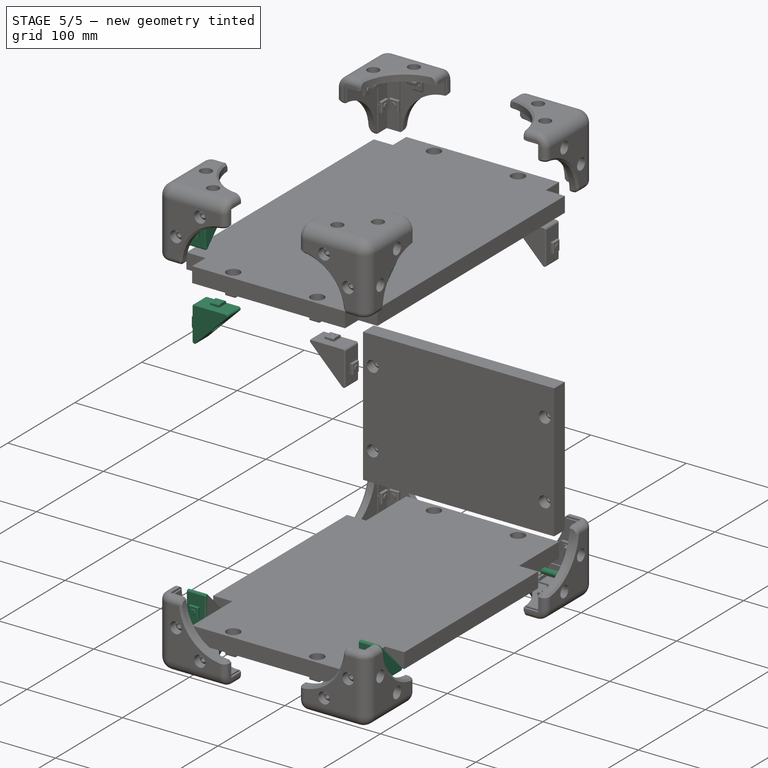
[diagram: stage 5 of 5 — iso view after this stage's code; geometry added in this stage tinted green]
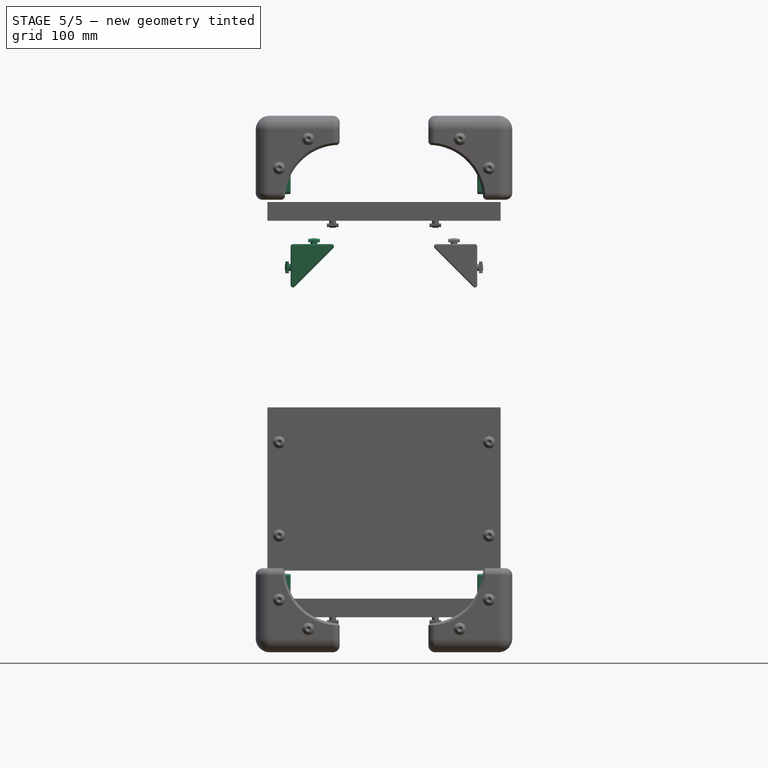
[diagram: stage 5 of 5 — front view after this stage's code; geometry added in this stage tinted green]
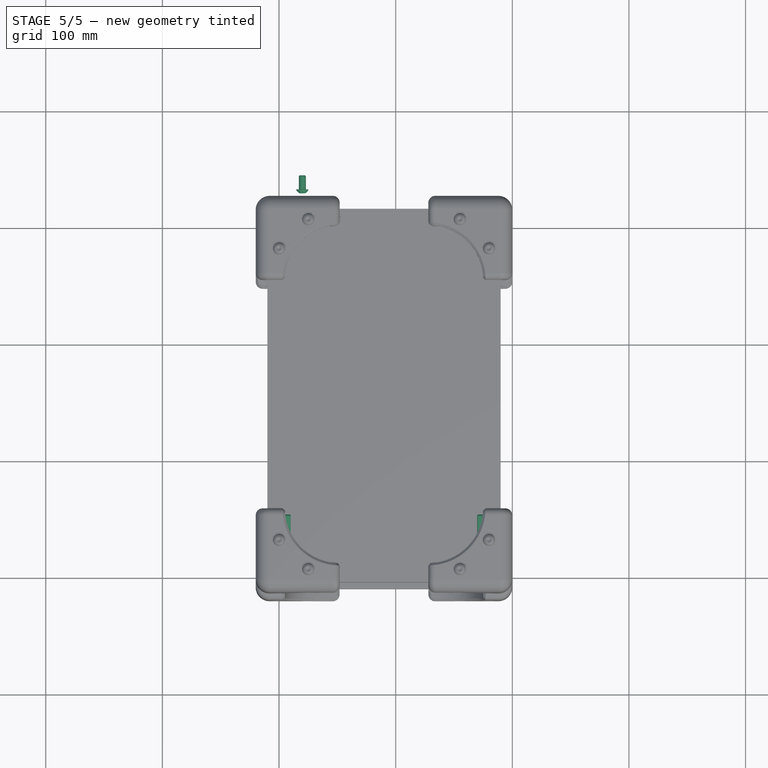
[diagram: stage 5 of 5 — top view after this stage's code; geometry added in this stage tinted green]
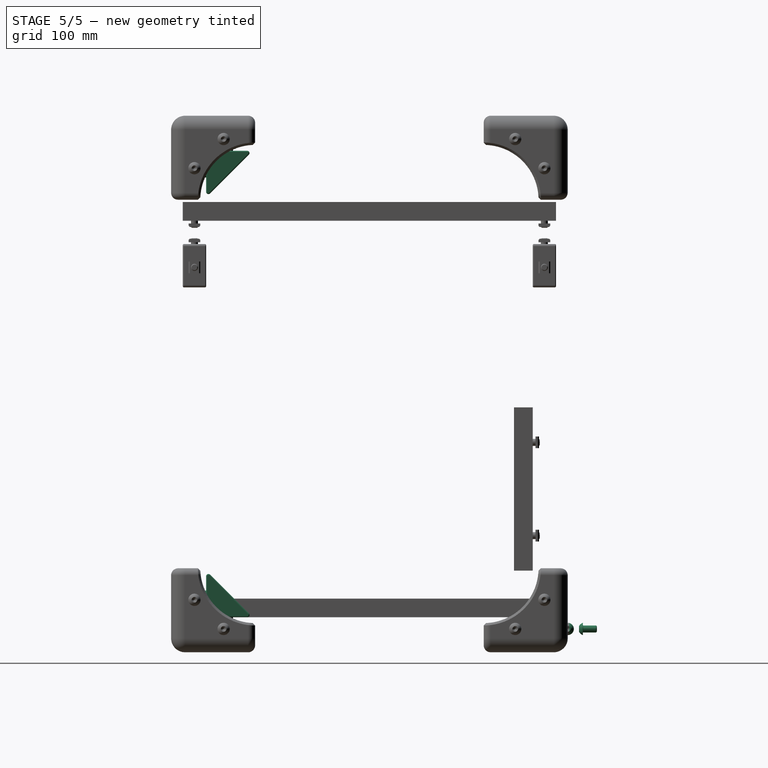
[diagram: stage 5 of 5 — right view after this stage's code; geometry added in this stage tinted green]
FEATURE [Part::Feature] Pocket001001  label="tslot40"
  Placement = pos=(0,0,20) rot=(0,0,1;0rad)
  shape: bbox 20 x 20 x 400 mm, 94 faces (baked)
FEATURE [Part::Feature] Pocket003001  label="tslot32con"
  Placement = pos=(0,10,10) rot=(1,0,0;1.5708rad)
  shape: bbox 20 x 320 x 20 mm, 150 faces (baked)
FEATURE [Part::Feature] Pocket003002  label="tslot16"
  Placement = pos=(10,0,10) rot=(0,1,0;1.5708rad)
  shape: bbox 160 x 20 x 20 mm, 94 faces (baked)
FEATURE [Part::Feature] Pocket003006  label="tslot16_001"
  Placement = pos=(10,-300,10) rot=(0,1,0;1.5708rad)
  shape: bbox 160 x 20 x 20 mm, 94 faces (baked)
FEATURE [Part::Feature] Pocket003007  label="tslot32con_001"
  Placement = pos=(180,-310,10) rot=(0,0.707107,0.707107;3.14159rad)
  shape: bbox 20 x 320 x 20 mm, 150 faces (baked)
FEATURE [Part::FeaturePython] Screw  label="M6x25-Screw"  # Fasteners workbench fastener (typed FeaturePython)
  Placement = pos=(-4,0,10) rot=(0,-1,0;1.5708rad)
  diameter = 7
  invert = false
  length = 6
  matchOuter = false
  offset = 0
  thread = false
  type = 15
FEATURE [Part::FeaturePython] Screw001  label="M6x25-Screw004"  # Fasteners workbench fastener (typed FeaturePython)
  Placement = pos=(-4,-300,10) rot=(0,-1,0;1.5708rad)
  diameter = 7
  invert = false
  length = 6
  matchOuter = false
  offset = 0
  thread = false
  type = 15
FEATURE [Part::FeaturePython] Screw002  label="M6x25-Screw005"  # Fasteners workbench fastener (typed FeaturePython)
  Placement = pos=(184,0,10) rot=(0,1,0;1.5708rad)
  diameter = 7
  invert = false
  length = 6
  matchOuter = false
  offset = 0
  thread = false
  type = 15
FEATURE [Part::FeaturePython] Screw004  label="M6x25-Screw006"  # Fasteners workbench fastener (typed FeaturePython)
  Placement = pos=(184,-300,10) rot=(0,1,0;1.5708rad)
  diameter = 7
  invert = false
  length = 6
  matchOuter = false
  offset = 0
  thread = false
  type = 15
FEATURE [App::Part] Part  label="lower_frame"
  Group = -> [Pocket003001,Pocket003002,Pocket003006,Pocket003007,Screw,Screw001,Screw002,Screw004]
  License = CC BY 3.0
  LicenseURL = http://creativecommons.org/licenses/by/3.0/
  Origin = -> PartOrigin
FEATURE [Part::Feature] Pocket003008  label="tslot32con001"
  Placement = pos=(0,10,10) rot=(1,0,0;1.5708rad)
  shape: bbox 20 x 320 x 20 mm, 150 faces (baked)
FEATURE [Part::Feature] Pocket003009  label="tslot041"
  Placement = pos=(10,0,10) rot=(0,1,0;1.5708rad)
  shape: bbox 160 x 20 x 20 mm, 94 faces (baked)
FEATURE [Part::Feature] Pocket003010  label="tslot16_002"
  Placement = pos=(10,-300,10) rot=(0,1,0;1.5708rad)
  shape: bbox 160 x 20 x 20 mm, 94 faces (baked)
FEATURE [Part::Feature] Pocket003011  label="tslot32con_002"
  Placement = pos=(180,-310,10) rot=(0,0.707107,0.707107;3.14159rad)
  shape: bbox 20 x 320 x 20 mm, 150 faces (baked)
FEATURE [Part::FeaturePython] Screw005  label="M6x25-Screw007"  # Fasteners workbench fastener (typed FeaturePython)
  Placement = pos=(-4,0,10) rot=(0,-1,0;1.5708rad)
  diameter = 7
  invert = false
  length = 6
  matchOuter = false
  offset = 0
  thread = false
  type = 15
FEATURE [Part::FeaturePython] Screw006  label="M6x25-Screw008"  # Fasteners workbench fastener (typed FeaturePython)
  Placement = pos=(-4,-300,10) rot=(0,-1,0;1.5708rad)
  diameter = 7
  invert = false
  length = 6
  matchOuter = false
  offset = 0
  thread = false
  type = 15
FEATURE [Part::FeaturePython] Screw007  label="M6x25-Screw009"  # Fasteners workbench fastener (typed FeaturePython)
  Placement = pos=(184,0,10) rot=(0,1,0;1.5708rad)
  diameter = 7
  invert = false
  length = 6
  matchOuter = false
  offset = 0
  thread = false
  type = 15
FEATURE [Part::FeaturePython] Screw008  label="M6x25-Screw010"  # Fasteners workbench fastener (typed FeaturePython)
  Placement = pos=(184,-300,10) rot=(0,1,0;1.5708rad)
  diameter = 7
  invert = false
  length = 6
  matchOuter = false
  offset = 0
  thread = false
  type = 15
FEATURE [App::Part] Part001  label="upper_frame"
  Group = -> [Pocket003008,Pocket003009,Pocket003010,Pocket003011,Screw005,Screw006,Screw007,Screw008]
  License = CC BY 3.0
  LicenseURL = http://creativecommons.org/licenses/by/3.0/
  Origin = -> PartOrigin001
  Placement = pos=(0,0,420) rot=(0,0,1;0rad)
FEATURE [Part::Feature] Pocket003012  label="tslot042"
  Placement = pos=(180,0,20) rot=(0,0,1;0rad)
  shape: bbox 20 x 20 x 400 mm, 94 faces (baked)
FEATURE [Part::Feature] Pocket003013  label="tslot043"
  Placement = pos=(180,-300,20) rot=(0,0,1;0rad)
  shape: bbox 20 x 20 x 400 mm, 94 faces (baked)
FEATURE [Part::Feature] Pocket003014  label="tslot044"
  Placement = pos=(0,-300,20) rot=(0,0,1;0rad)
  shape: bbox 20 x 20 x 400 mm, 94 faces (baked)
FEATURE [Part::Feature] Fillet004001  label="Fillet005"
  shape: bbox 37.5 x 37.5 x 20 mm, 26 faces (baked)
FEATURE [Part::FeaturePython] Screw009  label="M6x12-Screw"  # Fasteners workbench fastener (typed FeaturePython)
  Placement = pos=(7,20,10) rot=(0,1,0;1.5708rad)
  diameter = 4
  invert = false
  length = 1
  matchOuter = false
  offset = 0
  thread = false
  type = 20
FEATURE [Part::Feature] Body001  label="m6nutplate"
  Placement = pos=(-1.5,15,5) rot=(0,-1,0;1.5708rad)
  shape: bbox 3 x 10 x 10 mm, 9 faces (baked)
FEATURE [Part::FeaturePython] Screw010  label="M6x12-Screw001"  # Fasteners workbench fastener (typed FeaturePython)
  Placement = pos=(20,33,10) rot=(1,0,0;1.5708rad)
  diameter = 4
  invert = false
  length = 1
  matchOuter = false
  offset = 0
  thread = false
  type = 20
FEATURE [Part::Feature] Body002  label="m6nutplate001"
  Placement = pos=(15,41.5,5) rot=(0.57735,0.57735,0.57735;4.18879rad)
  shape: bbox 10 x 3 x 10 mm, 9 faces (baked)
FEATURE [App::Part] Part002  label="cornerstonescrewnut"
  Group = -> [Body001,Screw009,Fillet004001,Screw010,Body002]
  License = CC BY 3.0
  LicenseURL = http://creativecommons.org/licenses/by/3.0/
  Origin = -> PartOrigin002
  Placement = pos=(10,-50,20) rot=(0,-1,0;1.5708rad)
FEATURE [Part::Feature] Fillet004002  label="Fillet006"
  shape: bbox 37.5 x 37.5 x 20 mm, 26 faces (baked)
FEATURE [Part::FeaturePython] Screw011  label="M6x12-Screw002"  # Fasteners workbench fastener (typed FeaturePython)
  Placement = pos=(7,20,10) rot=(0,1,0;1.5708rad)
  diameter = 4
  invert = false
  length = 1
  matchOuter = false
  offset = 0
  thread = false
  type = 20
FEATURE [Part::Feature] Body003  label="m6nutplate002"
  Placement = pos=(-1.5,15,5) rot=(0,-1,0;1.5708rad)
  shape: bbox 3 x 10 x 10 mm, 9 faces (baked)
FEATURE [Part::FeaturePython] Screw012  label="M6x12-Screw003"  # Fasteners workbench fastener (typed FeaturePython)
  Placement = pos=(20,33,10) rot=(1,0,0;1.5708rad)
  diameter = 4
  invert = false
  length = 1
  matchOuter = false
  offset = 0
  thread = false
  type = 20
FEATURE [Part::Feature] Body004  label="m6nutplate003"
  Placement = pos=(15,41.5,5) rot=(0.57735,0.57735,0.57735;4.18879rad)
  shape: bbox 10 x 3 x 10 mm, 9 faces (baked)
FEATURE [App::Part] Part003  label="cornerstonescrewnut001"
  Group = -> [Body003,Screw011,Fillet004002,Screw012,Body004]
  License = CC BY 3.0
  LicenseURL = http://creativecommons.org/licenses/by/3.0/
  Origin = -> PartOrigin003
  Placement = pos=(190,-50,20) rot=(0,-1,0;1.5708rad)
FEATURE [Part::Feature] Fillet004003  label="Fillet007"
  shape: bbox 37.5 x 37.5 x 20 mm, 26 faces (baked)
FEATURE [Part::FeaturePython] Screw013  label="M6x12-Screw004"  # Fasteners workbench fastener (typed FeaturePython)
  Placement = pos=(7,20,10) rot=(0,1,0;1.5708rad)
  diameter = 4
  invert = false
  length = 1
  matchOuter = false
  offset = 0
  thread = false
  type = 20
FEATURE [Part::Feature] Body005  label="m6nutplate004"
  Placement = pos=(-1.5,15,5) rot=(0,-1,0;1.5708rad)
  shape: bbox 3 x 10 x 10 mm, 9 faces (baked)
FEATURE [Part::FeaturePython] Screw014  label="M6x12-Screw005"  # Fasteners workbench fastener (typed FeaturePython)
  Placement = pos=(20,33,10) rot=(1,0,0;1.5708rad)
  diameter = 4
  invert = false
  length = 1
  matchOuter = false
  offset = 0
  thread = false
  type = 20
FEATURE [Part::Feature] Body006  label="m6nutplate005"
  Placement = pos=(15,41.5,5) rot=(0.57735,0.57735,0.57735;4.18879rad)
  shape: bbox 10 x 3 x 10 mm, 9 faces (baked)
FEATURE [App::Part] Part004  label="cornerstonescrewnut002"
  Group = -> [Body005,Screw013,Fillet004003,Screw014,Body006]
  License = CC BY 3.0
  LicenseURL = http://creativecommons.org/licenses/by/3.0/
  Origin = -> PartOrigin004
  Placement = pos=(-10,-50,420) rot=(0,1,0;1.5708rad)
FEATURE [Part::Feature] Fillet004004  label="Fillet008"
  shape: bbox 37.5 x 37.5 x 20 mm, 26 faces (baked)
FEATURE [Part::FeaturePython] Screw015  label="M6x12-Screw006"  # Fasteners workbench fastener (typed FeaturePython)
  Placement = pos=(7,20,10) rot=(0,1,0;1.5708rad)
  diameter = 4
  invert = false
  length = 1
  matchOuter = false
  offset = 0
  thread = false
  type = 20
FEATURE [Part::Feature] Body007  label="m6nutplate006"
  Placement = pos=(-1.5,15,5) rot=(0,-1,0;1.5708rad)
  shape: bbox 3 x 10 x 10 mm, 9 faces (baked)
FEATURE [Part::FeaturePython] Screw016  label="M6x12-Screw007"  # Fasteners workbench fastener (typed FeaturePython)
  Placement = pos=(20,33,10) rot=(1,0,0;1.5708rad)
  diameter = 4
  invert = false
  length = 1
  matchOuter = false
  offset = 0
  thread = false
  type = 20
FEATURE [Part::Feature] Body008  label="m6nutplate007"
  Placement = pos=(15,41.5,5) rot=(0.57735,0.57735,0.57735;4.18879rad)
  shape: bbox 10 x 3 x 10 mm, 9 faces (baked)
FEATURE [App::Part] Part005  label="cornerstonescrewnut003"
  Group = -> [Body007,Screw015,Fillet004004,Screw016,Body008]
  License = CC BY 3.0
  LicenseURL = http://creativecommons.org/licenses/by/3.0/
  Origin = -> PartOrigin005
  Placement = pos=(170,-50,420) rot=(0,1,0;1.5708rad)
FEATURE [Part::Feature] Fillet004005  label="Fillet009"
  shape: bbox 37.5 x 37.5 x 20 mm, 26 faces (baked)
FEATURE [Part::FeaturePython] Screw017  label="M6x12-Screw008"  # Fasteners workbench fastener (typed FeaturePython)
  Placement = pos=(7,20,10) rot=(0,1,0;1.5708rad)
  diameter = 4
  invert = false
  length = 1
  matchOuter = false
  offset = 0
  thread = false
  type = 20
FEATURE [Part::Feature] Body009  label="m6nutplate008"
  Placement = pos=(-1.5,15,5) rot=(0,-1,0;1.5708rad)
  shape: bbox 3 x 10 x 10 mm, 9 faces (baked)
FEATURE [Part::FeaturePython] Screw018  label="M6x12-Screw009"  # Fasteners workbench fastener (typed FeaturePython)
  Placement = pos=(20,33,10) rot=(1,0,0;1.5708rad)
  diameter = 4
  invert = false
  length = 1
  matchOuter = false
  offset = 0
  thread = false
  type = 20
FEATURE [Part::Feature] Body010  label="m6nutplate009"
  Placement = pos=(15,41.5,5) rot=(0.57735,0.57735,0.57735;4.18879rad)
  shape: bbox 10 x 3 x 10 mm, 9 faces (baked)
FEATURE [App::Part] Part006  label="cornerstonescrewnut004"
  Group = -> [Body009,Screw017,Fillet004005,Screw018,Body010]
  License = CC BY 3.0
  LicenseURL = http://creativecommons.org/licenses/by/3.0/
  Origin = -> PartOrigin006
  Placement = pos=(10,10,300) rot=(1,0,0;1.5708rad)
FEATURE [Part::Feature] Body009001  label="m6nutplate010"
  Placement = pos=(-1.5,15,5) rot=(0,-1,0;1.5708rad)
  shape: bbox 3 x 10 x 10 mm, 9 faces (baked)
FEATURE [Part::Feature] Body010001  label="m6nutplate011"
  Placement = pos=(15,41.5,5) rot=(0.57735,0.57735,0.57735;4.18879rad)
  shape: bbox 10 x 3 x 10 mm, 9 faces (baked)
FEATURE [Part::Feature] Screw018001  label="M6x12-Screw010"
  Placement = pos=(20,33,10) rot=(1,0,0;1.5708rad)
  shape: bbox 10.5 x 15.3 x 10.5 mm, 15 faces (baked)
FEATURE [Part::Feature] Screw017001  label="M6x12-Screw011"
  Placement = pos=(7,20,10) rot=(0,1,0;1.5708rad)
  shape: bbox 15.3 x 10.5 x 10.5 mm, 15 faces (baked)
FEATURE [Part::Feature] Fillet004005001  label="Fillet010"
  shape: bbox 37.5 x 37.5 x 20 mm, 26 faces (baked)
FEATURE [Part::Compound] Compound  label="cornerstonescrewnut_c"
  Links = -> [Body009001,Fillet004005001,Screw017001,Body010001,Screw018001]
  Placement = pos=(10,-250,420) rot=(0.707107,0,-0.707107;3.14159rad)
FEATURE [Part::Feature] Body010002  label="m6nutplate012"
  Placement = pos=(-1.5,15,5) rot=(0,-1,0;1.5708rad)
  shape: bbox 3 x 10 x 10 mm, 9 faces (baked)
FEATURE [Part::Feature] Body010003  label="m6nutplate013"
  Placement = pos=(15,41.5,5) rot=(0.57735,0.57735,0.57735;4.18879rad)
  shape: bbox 10 x 3 x 10 mm, 9 faces (baked)
FEATURE [Part::Feature] Screw018002  label="M6x12-Screw012"
  Placement = pos=(20,33,10) rot=(1,0,0;1.5708rad)
  shape: bbox 10.5 x 15.3 x 10.5 mm, 15 faces (baked)
FEATURE [Part::Feature] Screw018003  label="M6x12-Screw013"
  Placement = pos=(7,20,10) rot=(0,1,0;1.5708rad)
  shape: bbox 15.3 x 10.5 x 10.5 mm, 15 faces (baked)
FEATURE [Part::Feature] Fillet004005002  label="Fillet011"
  shape: bbox 37.5 x 37.5 x 20 mm, 26 faces (baked)
FEATURE [Part::Compound] Compound001  label="cornerstonescrewnut_c001"
  Links = -> [Body010002,Fillet004005002,Screw018003,Body010003,Screw018002]
  Placement = pos=(190,-250,420) rot=(0.707107,0,-0.707107;3.14159rad)
FEATURE [Part::Feature] Body010004  label="m6nutplate014"
  Placement = pos=(-1.5,15,5) rot=(0,-1,0;1.5708rad)
  shape: bbox 3 x 10 x 10 mm, 9 faces (baked)
FEATURE [Part::Feature] Body010005  label="m6nutplate015"
  Placement = pos=(15,41.5,5) rot=(0.57735,0.57735,0.57735;4.18879rad)
  shape: bbox 10 x 3 x 10 mm, 9 faces (baked)
FEATURE [Part::Feature] Screw018004  label="M6x12-Screw014"
  Placement = pos=(20,33,10) rot=(1,0,0;1.5708rad)
  shape: bbox 10.5 x 15.3 x 10.5 mm, 15 faces (baked)
FEATURE [Part::Feature] Screw018005  label="M6x12-Screw015"
  Placement = pos=(7,20,10) rot=(0,1,0;1.5708rad)
  shape: bbox 15.3 x 10.5 x 10.5 mm, 15 faces (baked)
FEATURE [Part::Feature] Fillet004005003  label="Fillet012"
  shape: bbox 37.5 x 37.5 x 20 mm, 26 faces (baked)
FEATURE [Part::Compound] Compound002  label="cornerstonescrewnut_c002"
  Links = -> [Body010004,Fillet004005003,Screw018005,Body010005,Screw018004]
  Placement = pos=(10,-290,60) rot=(0.57735,0.57735,-0.57735;4.18879rad)
FEATURE [Part::Feature] Body010006  label="m6nutplate016"
  Placement = pos=(-1.5,15,5) rot=(0,-1,0;1.5708rad)
  shape: bbox 3 x 10 x 10 mm, 9 faces (baked)
FEATURE [Part::Feature] Body010007  label="m6nutplate017"
  Placement = pos=(15,41.5,5) rot=(0.57735,0.57735,0.57735;4.18879rad)
  shape: bbox 10 x 3 x 10 mm, 9 faces (baked)
FEATURE [Part::Feature] Screw018006  label="M6x12-Screw016"
  Placement = pos=(20,33,10) rot=(1,0,0;1.5708rad)
  shape: bbox 10.5 x 15.3 x 10.5 mm, 15 faces (baked)
FEATURE [Part::Feature] Screw018007  label="M6x12-Screw017"
  Placement = pos=(7,20,10) rot=(0,1,0;1.5708rad)
  shape: bbox 15.3 x 10.5 x 10.5 mm, 15 faces (baked)
FEATURE [Part::Feature] Fillet004005004  label="Fillet013"
  shape: bbox 37.5 x 37.5 x 20 mm, 26 faces (baked)
FEATURE [Part::Compound] Compound003  label="cornerstonescrewnut_c003"
  Links = -> [Body010006,Fillet004005004,Screw018007,Body010007,Screw018006]
  Placement = pos=(190,-290,60) rot=(0.57735,0.57735,-0.57735;4.18879rad)
FEATURE [Part::Feature] Pocket003015  label="tslot16_across"
  Placement = pos=(10,0,350) rot=(0,1,0;1.5708rad)
  shape: bbox 160 x 20 x 20 mm, 94 faces (baked)
FEATURE [Part::Feature] Pocket003016  label="tslot16_across001"
  Placement = pos=(10,-300,350) rot=(0,1,0;1.5708rad)
  shape: bbox 160 x 20 x 20 mm, 94 faces (baked)
FEATURE [Part::Feature] Body010008  label="m6nutplate018"
  Placement = pos=(-1.5,15,5) rot=(0,-1,0;1.5708rad)
  shape: bbox 3 x 10 x 10 mm, 9 faces (baked)
FEATURE [Part::Feature] Body010009  label="m6nutplate019"
  Placement = pos=(15,41.5,5) rot=(0.57735,0.57735,0.57735;4.18879rad)
  shape: bbox 10 x 3 x 10 mm, 9 faces (baked)
FEATURE [Part::Feature] Screw018008  label="M6x12-Screw018"
  Placement = pos=(20,33,10) rot=(1,0,0;1.5708rad)
  shape: bbox 10.5 x 15.3 x 10.5 mm, 15 faces (baked)
FEATURE [Part::Feature] Screw018009  label="M6x12-Screw019"
  Placement = pos=(7,20,10) rot=(0,1,0;1.5708rad)
  shape: bbox 15.3 x 10.5 x 10.5 mm, 15 faces (baked)
FEATURE [Part::Feature] Fillet004005005  label="Fillet014"
  shape: bbox 37.5 x 37.5 x 20 mm, 26 faces (baked)
FEATURE [Part::Compound] Compound004
  Links = -> [Body010008,Fillet004005005,Screw018009,Body010009,Screw018008]
  Placement = pos=(10,-290,300) rot=(1,0,0;1.5708rad)
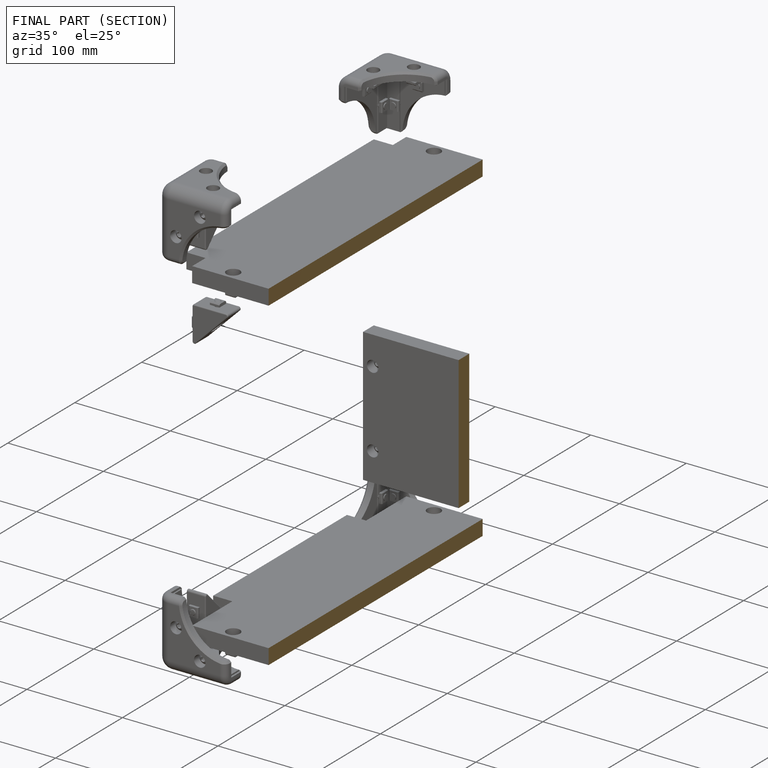
[diagram: finished part — half-section view (interior)]
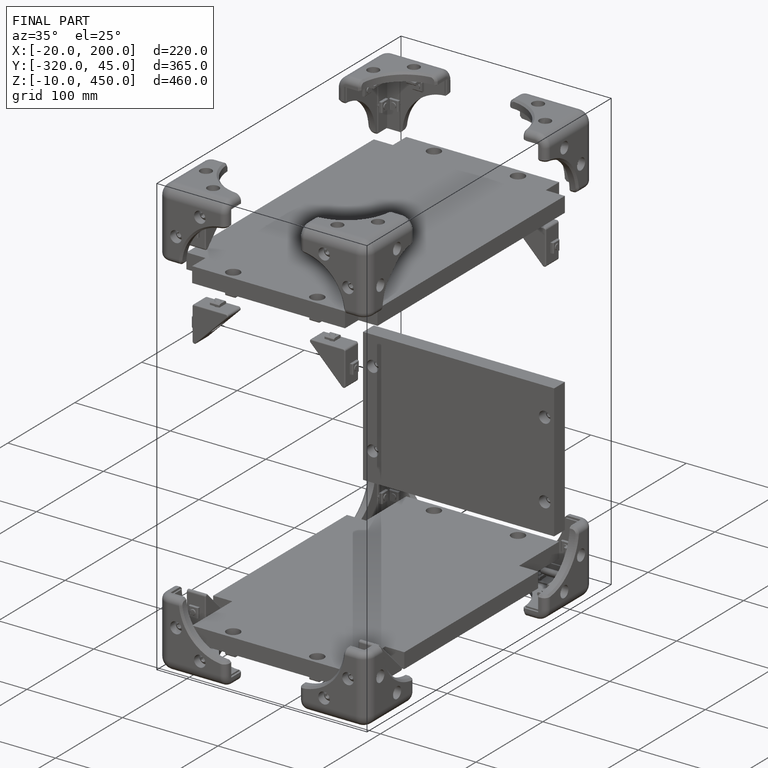
[diagram: finished part — iso view with bounding-box wireframe]
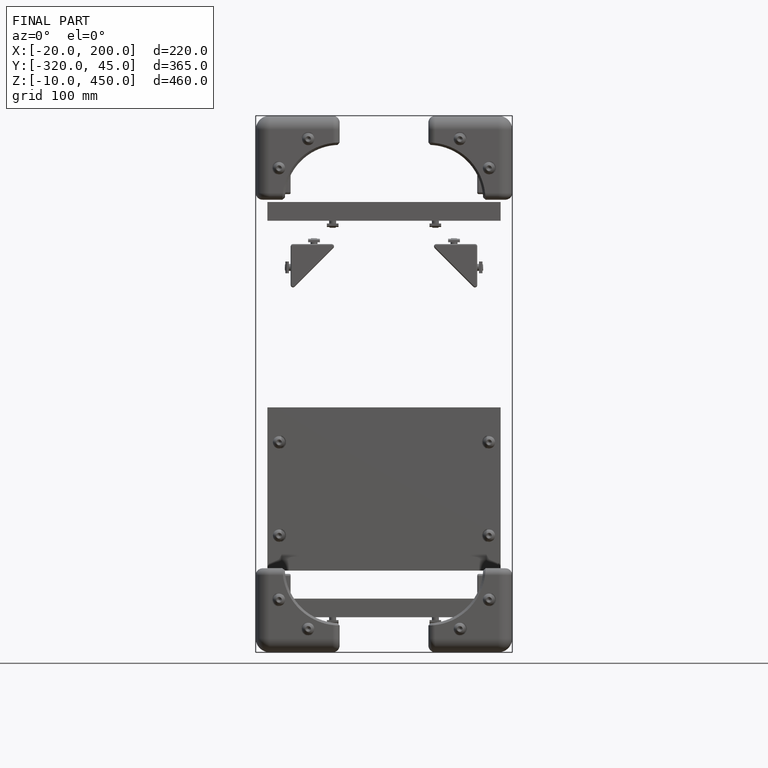
[diagram: finished part — front view with bounding-box wireframe]
